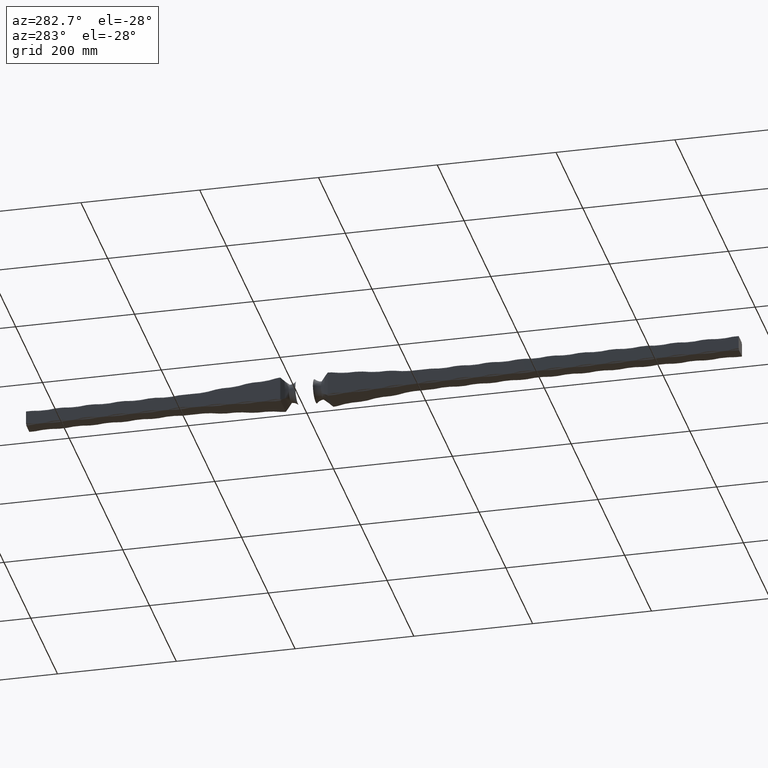
[diagram: clean part render]
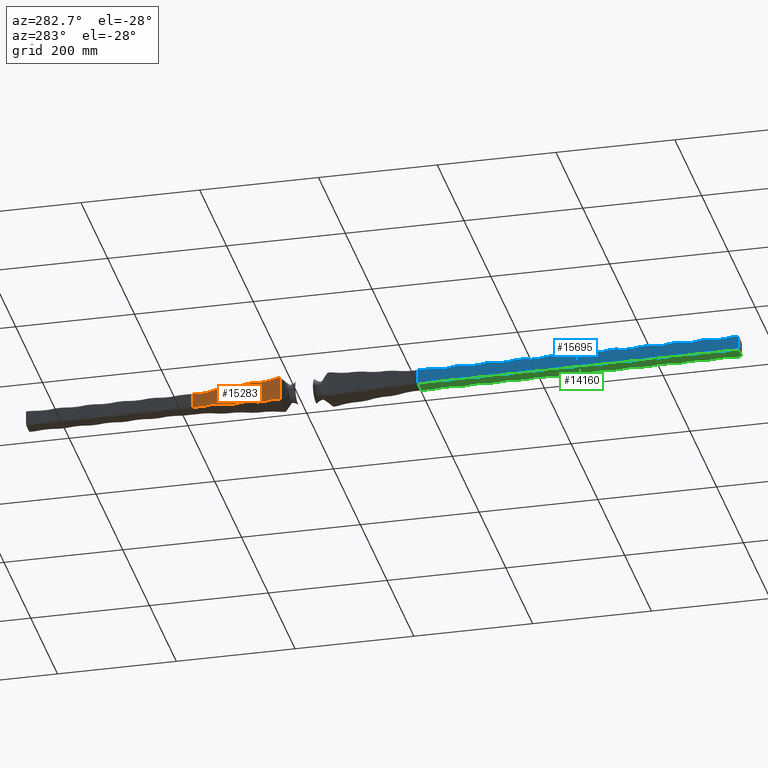
[diagram: same view with three faces highlighted in distinct colors, each labeled with its STEP entity id]
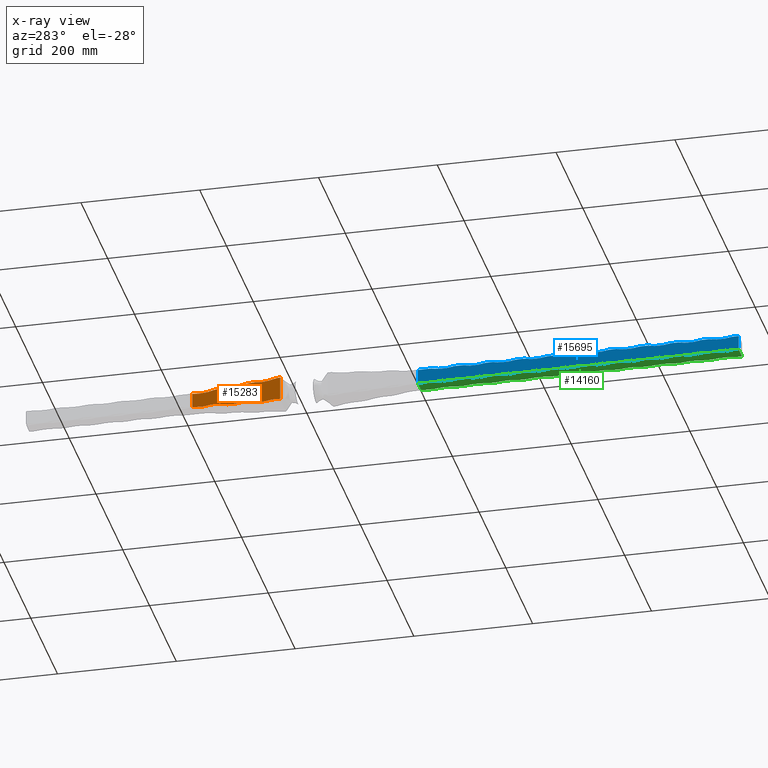
[diagram: x-ray of the same camera — body ghosted, the three highlighted faces saturated]
A machine part, auxiliary view with three faces highlighted in distinct colors.
The next image is the same camera in x-ray (body ghosted, the three faces saturated) — at least one of them is partly hidden behind the body in this view.
Their STEP definitions:

[orange] entity #15283 — the highlighted planar face has unit normal (-0.9984, 0.0566, 0).
#277 = CARTESIAN_POINT ( 'NONE',  ( -21.00000000000000711, 40.00000000000000000, 20.99999999999999289 ) ) ;
#294 = CIRCLE ( 'NONE', #4946, 81.24999999999987210 ) ;
#397 = ORIENTED_EDGE ( 'NONE', *, *, #1174, .T. ) ;
#486 = VERTEX_POINT ( 'NONE', #12861 ) ;
#538 = CARTESIAN_POINT ( 'NONE',  ( -12.50000000000000000, 190.0000000000000000, 12.50000000000000000 ) ) ;
#562 = ORIENTED_EDGE ( 'NONE', *, *, #11940, .T. ) ;
#812 = CARTESIAN_POINT ( 'NONE',  ( -16.31529829025017264, 122.6712066426441226, 95.19123039354830951 ) ) ;
#860 = CARTESIAN_POINT ( 'NONE',  ( -16.56696143558184176, 118.2300923132612382, -16.56696143558190926 ) ) ;
#1067 = VERTEX_POINT ( 'NONE', #11756 ) ;
#1174 = EDGE_CURVE ( 'NONE', #7459, #1945, #12394, .T. ) ;
#1239 = VERTEX_POINT ( 'NONE', #13956 ) ;
#1256 = DIRECTION ( 'NONE',  ( 0.9983983008393586545, -0.05657590371423038000, -0.000000000000000000 ) ) ;
#1577 = LINE ( 'NONE', #277, #2544 ) ;
#1737 = CARTESIAN_POINT ( 'NONE',  ( -20.38225972583189005, 50.90129895590548159, -99.25819182913001271 ) ) ;
#1945 = VERTEX_POINT ( 'NONE', #2256 ) ;
#2129 = DIRECTION ( 'NONE',  ( -0.05657590371423036613, -0.9983983008393584324, 0.000000000000000000 ) ) ;
#2149 = CARTESIAN_POINT ( 'NONE',  ( -21.00000000000000000, 40.00000000000000000, -21.00000000000001066 ) ) ;
#2256 = CARTESIAN_POINT ( 'NONE',  ( -18.37449985139595299, 86.33235556360118323, 18.37449985139590325 ) ) ;
#2468 = ORIENTED_EDGE ( 'NONE', *, *, #8350, .T. ) ;
#2499 = VECTOR ( 'NONE', #8227, 1000.000000000000000 ) ;
#2544 = VECTOR ( 'NONE', #8791, 999.9999999999998863 ) ;
#2571 = ORIENTED_EDGE ( 'NONE', *, *, #5411, .T. ) ;
#2853 = EDGE_CURVE ( 'NONE', #1239, #7459, #11809, .T. ) ;
#2909 = ORIENTED_EDGE ( 'NONE', *, *, #2853, .T. ) ;
#2952 = CARTESIAN_POINT ( 'NONE',  ( -19.50421136127986443, 66.39627009506082800, -19.50421136127996391 ) ) ;
#3080 = LINE ( 'NONE', #11721, #3654 ) ;
#3254 = CARTESIAN_POINT ( 'NONE',  ( -18.82638445534946925, 78.35792137618449260, -18.82638445534959715 ) ) ;
#3447 = EDGE_LOOP ( 'NONE', ( #7859, #12154, #3719, #2909, #397, #14274, #562, #2571, #2468, #7507, #10406, #7329, #10380, #15917 ) ) ;
#3620 = VERTEX_POINT ( 'NONE', #4412 ) ;
#3649 = CARTESIAN_POINT ( 'NONE',  ( -14.75942301976769322, 150.1278290629230980, 14.75942301976771098 ) ) ;
#3654 = VECTOR ( 'NONE', #4344, 999.9999999999998863 ) ;
#3698 = DIRECTION ( 'NONE',  ( -0.05657590371423036613, -0.9983983008393584324, 2.732856676000389821E-15 ) ) ;
#3719 = ORIENTED_EDGE ( 'NONE', *, *, #9148, .F. ) ;
#4344 = DIRECTION ( 'NONE',  ( 0.05648557549419242624, 0.9968042734269250138, 0.05648557549419249563 ) ) ;
#4398 = VECTOR ( 'NONE', #6594, 1000.000000000000000 ) ;
#4412 = CARTESIAN_POINT ( 'NONE',  ( -20.99999999999988276, 39.99999999999999289, -18.74519549917332029 ) ) ;
#4617 = VERTEX_POINT ( 'NONE', #860 ) ;
#4727 = VERTEX_POINT ( 'NONE', #10065 ) ;
#4779 = VERTEX_POINT ( 'NONE', #14899 ) ;
#4791 = LINE ( 'NONE', #538, #4398 ) ;
#4946 = AXIS2_PLACEMENT_3D ( 'NONE', #6340, #13630, #3698 ) ;
#5003 = VERTEX_POINT ( 'NONE', #3254 ) ;
#5276 = AXIS2_PLACEMENT_3D ( 'NONE', #9472, #8279, #2129 ) ;
#5411 = EDGE_CURVE ( 'NONE', #486, #11981, #5635, .T. ) ;
#5635 = LINE ( 'NONE', #6573, #14678 ) ;
#5703 = DIRECTION ( 'NONE',  ( 0.05648557549419242624, 0.9968042734269250138, 0.05648557549419249563 ) ) ;
#5902 = CARTESIAN_POINT ( 'NONE',  ( -21.00000000000000000, 40.00000000000000000, -21.00000000000001066 ) ) ;
#6017 = CARTESIAN_POINT ( 'NONE',  ( -12.50000000000000000, 190.0000000000000000, -12.50000000000000000 ) ) ;
#6340 = CARTESIAN_POINT ( 'NONE',  ( -17.44500980013394908, 102.7351211741056005, -96.32094190343195805 ) ) ;
#6573 = CARTESIAN_POINT ( 'NONE',  ( -21.00000000000000711, 40.00000000000000000, 20.99999999999999289 ) ) ;
#6594 = DIRECTION ( 'NONE',  ( 0.000000000000000000, 0.000000000000000000, -1.000000000000000000 ) ) ;
#6617 = EDGE_CURVE ( 'NONE', #1945, #4727, #1577, .T. ) ;
#6784 = VECTOR ( 'NONE', #12453, 999.9999999999998863 ) ;
#6810 = DIRECTION ( 'NONE',  ( 0.9983983008393586545, -0.05657590371423038000, -0.000000000000000000 ) ) ;
#6846 = VERTEX_POINT ( 'NONE', #2952 ) ;
#7112 = AXIS2_PLACEMENT_3D ( 'NONE', #11592, #1256, #13628 ) ;
#7184 = EDGE_CURVE ( 'NONE', #4617, #4779, #10671, .T. ) ;
#7211 = CARTESIAN_POINT ( 'NONE',  ( -13.37804836455215884, 174.5050288608442202, 92.25398046785014117 ) ) ;
#7329 = ORIENTED_EDGE ( 'NONE', *, *, #11925, .T. ) ;
#7459 = VERTEX_POINT ( 'NONE', #10923 ) ;
#7507 = ORIENTED_EDGE ( 'NONE', *, *, #12668, .T. ) ;
#7859 = ORIENTED_EDGE ( 'NONE', *, *, #13272, .F. ) ;
#8053 = VECTOR ( 'NONE', #5703, 999.9999999999998863 ) ;
#8227 = DIRECTION ( 'NONE',  ( 1.652117596168387263E-16, -0.000000000000000000, -1.000000000000000000 ) ) ;
#8279 = DIRECTION ( 'NONE',  ( -0.9983983008393585434, 0.05657590371423037306, 0.000000000000000000 ) ) ;
#8350 = EDGE_CURVE ( 'NONE', #11981, #1067, #14864, .T. ) ;
#8715 = VECTOR ( 'NONE', #13721, 999.9999999999998863 ) ;
#8776 = CIRCLE ( 'NONE', #11588, 81.24999999999987210 ) ;
#8791 = DIRECTION ( 'NONE',  ( 0.05648557549419247481, 0.9968042734269250138, -0.05648557549419237767 ) ) ;
#8866 = AXIS2_PLACEMENT_3D ( 'NONE', #13178, #15653, #10592 ) ;
#8957 = EDGE_CURVE ( 'NONE', #11680, #15634, #3080, .T. ) ;
#9148 = EDGE_CURVE ( 'NONE', #1239, #3620, #11581, .T. ) ;
#9472 = CARTESIAN_POINT ( 'NONE',  ( -23.19219395496684299, 1.314224324114788844, 0.000000000000000000 ) ) ;
#9495 = DIRECTION ( 'NONE',  ( 0.9983983008393586545, -0.05657590371423038000, -0.000000000000000000 ) ) ;
#9569 = DIRECTION ( 'NONE',  ( 0.9983983008393586545, -0.05657590371423038000, -0.000000000000000000 ) ) ;
#9884 = CARTESIAN_POINT ( 'NONE',  ( -13.62971150988382085, 170.0639145314615917, -13.62971150988386171 ) ) ;
#9959 = LINE ( 'NONE', #2149, #8053 ) ;
#10065 = CARTESIAN_POINT ( 'NONE',  ( -17.69667294546571057, 98.29400684472301464, 17.69667294546586689 ) ) ;
#10150 = CARTESIAN_POINT ( 'NONE',  ( -21.00000000000000000, 40.00000000000000000, -21.00000000000001066 ) ) ;
#10380 = ORIENTED_EDGE ( 'NONE', *, *, #7184, .F. ) ;
#10406 = ORIENTED_EDGE ( 'NONE', *, *, #8957, .F. ) ;
#10592 = DIRECTION ( 'NONE',  ( -0.05657590371423038694, -0.9983983008393584324, 6.148927521000876702E-15 ) ) ;
#10671 = LINE ( 'NONE', #10150, #8715 ) ;
#10752 = FACE_OUTER_BOUND ( 'NONE', #3447, .T. ) ;
#10923 = CARTESIAN_POINT ( 'NONE',  ( -20.63392287116372259, 46.46018462652293124, 20.63392287116402102 ) ) ;
#11483 = DIRECTION ( 'NONE',  ( 0.05648557549419247481, 0.9968042734269250138, -0.05648557549419237767 ) ) ;
#11581 = LINE ( 'NONE', #5902, #2499 ) ;
#11588 = AXIS2_PLACEMENT_3D ( 'NONE', #1737, #6810, #15437 ) ;
#11592 = CARTESIAN_POINT ( 'NONE',  ( -19.25254821594818821, 70.83738442444403915, 98.12848031924644943 ) ) ;
#11680 = VERTEX_POINT ( 'NONE', #9884 ) ;
#11721 = CARTESIAN_POINT ( 'NONE',  ( -21.00000000000000000, 40.00000000000000000, -21.00000000000001066 ) ) ;
#11741 = CIRCLE ( 'NONE', #12913, 81.24999999999994316 ) ;
#11756 = CARTESIAN_POINT ( 'NONE',  ( -12.50000000000000000, 190.0000000000000000, 12.50000000000000000 ) ) ;
#11809 = LINE ( 'NONE', #12353, #6784 ) ;
#11925 = EDGE_CURVE ( 'NONE', #11680, #4779, #14630, .T. ) ;
#11940 = EDGE_CURVE ( 'NONE', #4727, #486, #11741, .T. ) ;
#11981 = VERTEX_POINT ( 'NONE', #3649 ) ;
#12005 = PLANE ( 'NONE',  #5276 ) ;
#12048 = DIRECTION ( 'NONE',  ( -0.05657590371423035919, -0.9983983008393584324, 0.000000000000000000 ) ) ;
#12080 = EDGE_CURVE ( 'NONE', #4617, #5003, #294, .T. ) ;
#12154 = ORIENTED_EDGE ( 'NONE', *, *, #15034, .T. ) ;
#12353 = CARTESIAN_POINT ( 'NONE',  ( -21.00000000000000711, 40.00000000000000000, 20.99999999999999289 ) ) ;
#12394 = CIRCLE ( 'NONE', #7112, 81.24999999999994316 ) ;
#12453 = DIRECTION ( 'NONE',  ( 0.05648557549419247481, 0.9968042734269250138, -0.05648557549419237767 ) ) ;
#12668 = EDGE_CURVE ( 'NONE', #1067, #15634, #4791, .T. ) ;
#12861 = CARTESIAN_POINT ( 'NONE',  ( -15.43724992569796761, 138.1661777818006840, 15.43724992569793919 ) ) ;
#12913 = AXIS2_PLACEMENT_3D ( 'NONE', #812, #9569, #12048 ) ;
#13178 = CARTESIAN_POINT ( 'NONE',  ( -14.50775987443600989, 154.5689433923056981, -93.38369197773393182 ) ) ;
#13272 = EDGE_CURVE ( 'NONE', #6846, #5003, #9959, .T. ) ;
#13628 = DIRECTION ( 'NONE',  ( -0.05657590371423035919, -0.9983983008393584324, 0.000000000000000000 ) ) ;
#13630 = DIRECTION ( 'NONE',  ( 0.9983983008393586545, -0.05657590371423038000, -0.000000000000000000 ) ) ;
#13721 = DIRECTION ( 'NONE',  ( 0.05648557549419242624, 0.9968042734269250138, 0.05648557549419249563 ) ) ;
#13956 = CARTESIAN_POINT ( 'NONE',  ( -21.00000000000000711, 40.00000000000000000, 20.99999999999999289 ) ) ;
#14013 = AXIS2_PLACEMENT_3D ( 'NONE', #7211, #9495, #15683 ) ;
#14274 = ORIENTED_EDGE ( 'NONE', *, *, #6617, .T. ) ;
#14630 = CIRCLE ( 'NONE', #8866, 81.24999999999987210 ) ;
#14678 = VECTOR ( 'NONE', #11483, 999.9999999999998863 ) ;
#14864 = CIRCLE ( 'NONE', #14013, 81.24999999999994316 ) ;
#14899 = CARTESIAN_POINT ( 'NONE',  ( -15.88913452965152651, 130.1917435943846044, -15.88913452965155848 ) ) ;
#15034 = EDGE_CURVE ( 'NONE', #6846, #3620, #8776, .T. ) ;
#15283 = ADVANCED_FACE ( 'NONE', ( #10752 ), #12005, .T. ) ;
#15437 = DIRECTION ( 'NONE',  ( -0.05657590371423036613, -0.9983983008393584324, 2.732856676000389821E-15 ) ) ;
#15634 = VERTEX_POINT ( 'NONE', #6017 ) ;
#15653 = DIRECTION ( 'NONE',  ( 0.9983983008393586545, -0.05657590371423038000, -0.000000000000000000 ) ) ;
#15683 = DIRECTION ( 'NONE',  ( -0.05657590371423035919, -0.9983983008393584324, 0.000000000000000000 ) ) ;
#15917 = ORIENTED_EDGE ( 'NONE', *, *, #12080, .T. ) ;

[blue] entity #15695 — the highlighted planar face has unit normal (1, 0, 0).
#9 = LINE ( 'NONE', #11752, #6208 ) ;
#26 = CARTESIAN_POINT ( 'NONE',  ( -12.49999999999999645, -720.0000000000000000, 12.50000000000000533 ) ) ;
#70 = CIRCLE ( 'NONE', #12720, 81.25000000000005684 ) ;
#113 = ORIENTED_EDGE ( 'NONE', *, *, #13158, .F. ) ;
#146 = LINE ( 'NONE', #3656, #9275 ) ;
#225 = EDGE_CURVE ( 'NONE', #3206, #9755, #11658, .T. ) ;
#354 = VERTEX_POINT ( 'NONE', #2924 ) ;
#358 = DIRECTION ( 'NONE',  ( 0.000000000000000000, 0.000000000000000000, -1.000000000000000000 ) ) ;
#383 = CIRCLE ( 'NONE', #5669, 81.25000000000007105 ) ;
#394 = DIRECTION ( 'NONE',  ( -0.000000000000000000, 1.000000000000000000, -0.000000000000000000 ) ) ;
#421 = CARTESIAN_POINT ( 'NONE',  ( -12.50000000000000000, -1965.355339059327207, 12.50000000000000000 ) ) ;
#448 = EDGE_CURVE ( 'NONE', #3206, #6630, #10895, .T. ) ;
#449 = ORIENTED_EDGE ( 'NONE', *, *, #225, .T. ) ;
#491 = DIRECTION ( 'NONE',  ( -1.000000000000000000, -0.000000000000000000, -0.000000000000000000 ) ) ;
#537 = VERTEX_POINT ( 'NONE', #1294 ) ;
#554 = VECTOR ( 'NONE', #12386, 1000.000000000000000 ) ;
#561 = VECTOR ( 'NONE', #5004, 1000.000000000000000 ) ;
#587 = DIRECTION ( 'NONE',  ( -1.000000000000000000, -0.000000000000000000, -0.000000000000000000 ) ) ;
#618 = CARTESIAN_POINT ( 'NONE',  ( -12.50000000000000000, -1965.355339059327207, -12.50000000000000000 ) ) ;
#693 = LINE ( 'NONE', #11287, #4598 ) ;
#775 = CARTESIAN_POINT ( 'NONE',  ( -12.50000000000000000, -1965.355339059327207, -12.50000000000000000 ) ) ;
#814 = CARTESIAN_POINT ( 'NONE',  ( -12.49999999999999289, -387.9999999999995453, -12.49999999999999645 ) ) ;
#830 = CARTESIAN_POINT ( 'NONE',  ( -12.50000000000000000, -730.0000000000000000, -10.02461911446646070 ) ) ;
#848 = ORIENTED_EDGE ( 'NONE', *, *, #9998, .T. ) ;
#859 = CARTESIAN_POINT ( 'NONE',  ( -12.49999999999999645, -679.9999999999998863, 12.50000000000000533 ) ) ;
#896 = DIRECTION ( 'NONE',  ( 0.000000000000000000, 0.000000000000000000, -1.000000000000000000 ) ) ;
#915 = CARTESIAN_POINT ( 'NONE',  ( -12.49999999999999289, -451.9999999999999432, -12.50000000000006750 ) ) ;
#922 = ORIENTED_EDGE ( 'NONE', *, *, #2347, .T. ) ;
#942 = CARTESIAN_POINT ( 'NONE',  ( -12.49999999999999645, -408.0000000000003979, 12.49999999999991651 ) ) ;
#959 = VERTEX_POINT ( 'NONE', #6622 ) ;
#1061 = CARTESIAN_POINT ( 'NONE',  ( -12.49999999999999289, -555.9999999999998863, -12.50000000000003553 ) ) ;
#1137 = LINE ( 'NONE', #8103, #8115 ) ;
#1149 = CARTESIAN_POINT ( 'NONE',  ( -12.49999999999999289, -543.9999999999996589, -12.49999999999999645 ) ) ;
#1219 = VERTEX_POINT ( 'NONE', #8890 ) ;
#1226 = DIRECTION ( 'NONE',  ( 0.000000000000000000, 0.000000000000000000, -1.000000000000000000 ) ) ;
#1236 = DIRECTION ( 'NONE',  ( -0.000000000000000000, 1.000000000000000000, -0.000000000000000000 ) ) ;
#1277 = EDGE_CURVE ( 'NONE', #3437, #13250, #11836, .T. ) ;
#1282 = DIRECTION ( 'NONE',  ( 0.000000000000000000, 0.000000000000000000, -1.000000000000000000 ) ) ;
#1292 = ORIENTED_EDGE ( 'NONE', *, *, #12832, .F. ) ;
#1294 = CARTESIAN_POINT ( 'NONE',  ( -12.49999999999999467, -190.0000000000000853, 12.50000000000001243 ) ) ;
#1321 = LINE ( 'NONE', #12014, #13519 ) ;
#1401 = AXIS2_PLACEMENT_3D ( 'NONE', #2622, #12494, #11146 ) ;
#1434 = ORIENTED_EDGE ( 'NONE', *, *, #10932, .T. ) ;
#1452 = VERTEX_POINT ( 'NONE', #814 ) ;
#1454 = VERTEX_POINT ( 'NONE', #8063 ) ;
#1649 = AXIS2_PLACEMENT_3D ( 'NONE', #10328, #10391, #4248 ) ;
#1806 = ORIENTED_EDGE ( 'NONE', *, *, #6106, .T. ) ;
#1881 = DIRECTION ( 'NONE',  ( -0.000000000000000000, 1.000000000000000000, -0.000000000000000000 ) ) ;
#1923 = VERTEX_POINT ( 'NONE', #15779 ) ;
#1936 = VECTOR ( 'NONE', #9509, 1000.000000000000000 ) ;
#2030 = DIRECTION ( 'NONE',  ( -0.000000000000000000, 1.000000000000000000, -0.000000000000000000 ) ) ;
#2040 = ORIENTED_EDGE ( 'NONE', *, *, #4087, .T. ) ;
#2104 = CIRCLE ( 'NONE', #3893, 81.24999999999998579 ) ;
#2200 = CIRCLE ( 'NONE', #2826, 81.25000000000007105 ) ;
#2262 = DIRECTION ( 'NONE',  ( 0.000000000000000000, 0.000000000000000000, -1.000000000000000000 ) ) ;
#2301 = CARTESIAN_POINT ( 'NONE',  ( -12.49999999999999645, -252.0000000000006253, 12.49999999999987033 ) ) ;
#2305 = CARTESIAN_POINT ( 'NONE',  ( -12.49999999999997691, -732.0000000000000000, -91.25000000000008527 ) ) ;
#2315 = VERTEX_POINT ( 'NONE', #10603 ) ;
#2347 = EDGE_CURVE ( 'NONE', #6139, #9299, #383, .T. ) ;
#2355 = AXIS2_PLACEMENT_3D ( 'NONE', #11854, #13421, #2262 ) ;
#2380 = CARTESIAN_POINT ( 'NONE',  ( -12.49999999999987743, -263.9999999999999432, 12.49999999999988631 ) ) ;
#2512 = EDGE_CURVE ( 'NONE', #1219, #354, #10859, .T. ) ;
#2622 = CARTESIAN_POINT ( 'NONE',  ( -12.49999999999999289, -472.0000000000000000, -91.25000000000012790 ) ) ;
#2657 = CARTESIAN_POINT ( 'NONE',  ( -12.49999999999999289, -231.9999999999994316, -12.49999999999999645 ) ) ;
#2665 = DIRECTION ( 'NONE',  ( 0.000000000000000000, 0.000000000000000000, 1.000000000000000000 ) ) ;
#2670 = LINE ( 'NONE', #12996, #11757 ) ;
#2684 = LINE ( 'NONE', #12216, #7148 ) ;
#2714 = VECTOR ( 'NONE', #394, 1000.000000000000000 ) ;
#2725 = EDGE_CURVE ( 'NONE', #10695, #14837, #4698, .T. ) ;
#2826 = AXIS2_PLACEMENT_3D ( 'NONE', #2305, #12127, #8596 ) ;
#2913 = EDGE_CURVE ( 'NONE', #5672, #1454, #7181, .T. ) ;
#2924 = CARTESIAN_POINT ( 'NONE',  ( -12.49999999999999645, -616.0000000000001137, 12.49999999999997691 ) ) ;
#3115 = DIRECTION ( 'NONE',  ( -0.000000000000000000, 1.000000000000000000, -0.000000000000000000 ) ) ;
#3206 = VERTEX_POINT ( 'NONE', #10521 ) ;
#3235 = CARTESIAN_POINT ( 'NONE',  ( -12.49999999999999289, -700.0000000000000000, -12.49999999999999645 ) ) ;
#3293 = AXIS2_PLACEMENT_3D ( 'NONE', #11577, #491, #11630 ) ;
#3301 = CARTESIAN_POINT ( 'NONE',  ( -12.49999999999989164, -315.9999999999999432, 12.49999999999990052 ) ) ;
#3323 = DIRECTION ( 'NONE',  ( -1.000000000000000000, -0.000000000000000000, -0.000000000000000000 ) ) ;
#3341 = CARTESIAN_POINT ( 'NONE',  ( -12.49999999999999289, -283.9999999999994884, -12.49999999999999645 ) ) ;
#3410 = CARTESIAN_POINT ( 'NONE',  ( -12.49999999999999289, -576.0000000000000000, -91.25000000000009948 ) ) ;
#3422 = CIRCLE ( 'NONE', #5998, 81.25000000000007105 ) ;
#3424 = CARTESIAN_POINT ( 'NONE',  ( -12.49999999999999289, -335.9999999999995453, -12.49999999999999645 ) ) ;
#3432 = VERTEX_POINT ( 'NONE', #14903 ) ;
#3437 = VERTEX_POINT ( 'NONE', #3588 ) ;
#3439 = EDGE_CURVE ( 'NONE', #10508, #15776, #5828, .T. ) ;
#3450 = CIRCLE ( 'NONE', #1401, 81.25000000000005684 ) ;
#3484 = CARTESIAN_POINT ( 'NONE',  ( -12.50000000000000000, -1965.355339059327207, 12.50000000000000000 ) ) ;
#3499 = AXIS2_PLACEMENT_3D ( 'NONE', #4881, #7196, #14537 ) ;
#3527 = CARTESIAN_POINT ( 'NONE',  ( -12.49999999999999289, -315.9999999999999432, -91.25000000000017053 ) ) ;
#3588 = CARTESIAN_POINT ( 'NONE',  ( -12.49999999999999289, -347.9999999999999432, -12.50000000000009592 ) ) ;
#3651 = VERTEX_POINT ( 'NONE', #6936 ) ;
#3656 = CARTESIAN_POINT ( 'NONE',  ( -12.50000000000000000, -1965.355339059327207, -12.50000000000000000 ) ) ;
#3657 = LINE ( 'NONE', #8833, #561 ) ;
#3715 = EDGE_CURVE ( 'NONE', #10695, #15578, #11815, .T. ) ;
#3718 = ORIENTED_EDGE ( 'NONE', *, *, #9682, .T. ) ;
#3720 = ORIENTED_EDGE ( 'NONE', *, *, #13401, .T. ) ;
#3753 = VECTOR ( 'NONE', #9028, 1000.000000000000000 ) ;
#3835 = EDGE_CURVE ( 'NONE', #1923, #1454, #9310, .T. ) ;
#3893 = AXIS2_PLACEMENT_3D ( 'NONE', #14499, #3323, #896 ) ;
#3912 = ORIENTED_EDGE ( 'NONE', *, *, #15341, .T. ) ;
#3943 = CARTESIAN_POINT ( 'NONE',  ( -12.49999999999990763, -367.9999999999999432, 12.49999999999991651 ) ) ;
#4022 = VERTEX_POINT ( 'NONE', #942 ) ;
#4057 = EDGE_CURVE ( 'NONE', #3651, #13250, #8154, .T. ) ;
#4087 = EDGE_CURVE ( 'NONE', #959, #4751, #6364, .T. ) ;
#4114 = AXIS2_PLACEMENT_3D ( 'NONE', #9154, #6657, #5495 ) ;
#4180 = CIRCLE ( 'NONE', #10871, 81.25000000000007105 ) ;
#4248 = DIRECTION ( 'NONE',  ( 0.000000000000000000, 0.000000000000000000, -1.000000000000000000 ) ) ;
#4334 = VERTEX_POINT ( 'NONE', #830 ) ;
#4373 = DIRECTION ( 'NONE',  ( 0.000000000000000000, 0.000000000000000000, -1.000000000000000000 ) ) ;
#4377 = CARTESIAN_POINT ( 'NONE',  ( -12.49999999999996447, -596.0000000000000000, 91.24999999999994316 ) ) ;
#4403 = CARTESIAN_POINT ( 'NONE',  ( -12.49999999999999289, -191.9999999999999432, -12.50000000000014033 ) ) ;
#4426 = EDGE_CURVE ( 'NONE', #2315, #4022, #10846, .T. ) ;
#4456 = AXIS2_PLACEMENT_3D ( 'NONE', #3410, #12159, #12059 ) ;
#4565 = CIRCLE ( 'NONE', #1649, 81.25000000000005684 ) ;
#4598 = VECTOR ( 'NONE', #1236, 1000.000000000000000 ) ;
#4608 = VERTEX_POINT ( 'NONE', #3341 ) ;
#4639 = ORIENTED_EDGE ( 'NONE', *, *, #3835, .F. ) ;
#4698 = LINE ( 'NONE', #10178, #2714 ) ;
#4715 = EDGE_CURVE ( 'NONE', #6507, #15578, #3657, .T. ) ;
#4751 = VERTEX_POINT ( 'NONE', #1149 ) ;
#4762 = ORIENTED_EDGE ( 'NONE', *, *, #4426, .T. ) ;
#4786 = CARTESIAN_POINT ( 'NONE',  ( -12.49999999999987388, -284.0000000000000000, 91.24999999999985789 ) ) ;
#4805 = ORIENTED_EDGE ( 'NONE', *, *, #13371, .F. ) ;
#4881 = CARTESIAN_POINT ( 'NONE',  ( -12.49999999999997868, -647.9999999999998863, 91.24999999999997158 ) ) ;
#5004 = DIRECTION ( 'NONE',  ( -0.000000000000000000, 1.000000000000000000, -0.000000000000000000 ) ) ;
#5128 = CARTESIAN_POINT ( 'NONE',  ( -12.49999999999999645, -512.0000000000003411, 12.49999999999994493 ) ) ;
#5138 = EDGE_CURVE ( 'NONE', #959, #5892, #1321, .T. ) ;
#5145 = DIRECTION ( 'NONE',  ( 1.000000000000000000, 0.000000000000000000, 0.000000000000000000 ) ) ;
#5146 = AXIS2_PLACEMENT_3D ( 'NONE', #3527, #12175, #15782 ) ;
#5149 = CARTESIAN_POINT ( 'NONE',  ( -12.49999999999999289, -627.9999999999998863, -91.25000000000008527 ) ) ;
#5157 = LINE ( 'NONE', #775, #14238 ) ;
#5168 = DIRECTION ( 'NONE',  ( -0.000000000000000000, 1.000000000000000000, -0.000000000000000000 ) ) ;
#5210 = VERTEX_POINT ( 'NONE', #9779 ) ;
#5218 = VECTOR ( 'NONE', #13569, 1000.000000000000000 ) ;
#5406 = ORIENTED_EDGE ( 'NONE', *, *, #14958, .T. ) ;
#5466 = VECTOR ( 'NONE', #3115, 1000.000000000000000 ) ;
#5480 = AXIS2_PLACEMENT_3D ( 'NONE', #15404, #10517, #4373 ) ;
#5495 = DIRECTION ( 'NONE',  ( 0.000000000000000000, 0.000000000000000000, -1.000000000000000000 ) ) ;
#5617 = VERTEX_POINT ( 'NONE', #3235 ) ;
#5657 = DIRECTION ( 'NONE',  ( -0.000000000000000000, 1.000000000000000000, -0.000000000000000000 ) ) ;
#5669 = AXIS2_PLACEMENT_3D ( 'NONE', #7036, #15666, #13298 ) ;
#5672 = VERTEX_POINT ( 'NONE', #859 ) ;
#5684 = CARTESIAN_POINT ( 'NONE',  ( -12.49999999999999289, -700.0000000000000000, 91.24999999999998579 ) ) ;
#5796 = LINE ( 'NONE', #11983, #1936 ) ;
#5828 = LINE ( 'NONE', #9754, #5218 ) ;
#5892 = VERTEX_POINT ( 'NONE', #11468 ) ;
#5984 = AXIS2_PLACEMENT_3D ( 'NONE', #4786, #7250, #15873 ) ;
#5985 = ORIENTED_EDGE ( 'NONE', *, *, #13486, .T. ) ;
#5998 = AXIS2_PLACEMENT_3D ( 'NONE', #14794, #14605, #7212 ) ;
#6040 = VECTOR ( 'NONE', #9748, 1000.000000000000000 ) ;
#6106 = EDGE_CURVE ( 'NONE', #15285, #4334, #2200, .T. ) ;
#6115 = EDGE_CURVE ( 'NONE', #11472, #6630, #11835, .T. ) ;
#6129 = ORIENTED_EDGE ( 'NONE', *, *, #9267, .F. ) ;
#6139 = VERTEX_POINT ( 'NONE', #7357 ) ;
#6176 = ORIENTED_EDGE ( 'NONE', *, *, #13168, .F. ) ;
#6208 = VECTOR ( 'NONE', #5657, 1000.000000000000000 ) ;
#6280 = CARTESIAN_POINT ( 'NONE',  ( -12.50000000000000000, -730.0000000000000000, 12.50000000000000000 ) ) ;
#6364 = CIRCLE ( 'NONE', #11548, 81.25000000000004263 ) ;
#6370 = DIRECTION ( 'NONE',  ( 1.000000000000000000, 0.000000000000000000, 0.000000000000000000 ) ) ;
#6415 = VECTOR ( 'NONE', #14146, 1000.000000000000000 ) ;
#6507 = VERTEX_POINT ( 'NONE', #3301 ) ;
#6508 = DIRECTION ( 'NONE',  ( -0.000000000000000000, 1.000000000000000000, -0.000000000000000000 ) ) ;
#6622 = CARTESIAN_POINT ( 'NONE',  ( -12.49999999999999289, -503.9999999999998863, -12.50000000000005151 ) ) ;
#6630 = VERTEX_POINT ( 'NONE', #5128 ) ;
#6657 = DIRECTION ( 'NONE',  ( -1.000000000000000000, -0.000000000000000000, -0.000000000000000000 ) ) ;
#6768 = CARTESIAN_POINT ( 'NONE',  ( -12.49999999999995204, -523.9999999999998863, 12.49999999999996092 ) ) ;
#6841 = DIRECTION ( 'NONE',  ( -1.000000000000000000, -0.000000000000000000, -0.000000000000000000 ) ) ;
#6885 = EDGE_CURVE ( 'NONE', #15285, #5617, #10867, .T. ) ;
#6892 = CARTESIAN_POINT ( 'NONE',  ( -12.49999999999999645, -356.0000000000004547, 12.49999999999990052 ) ) ;
#6906 = ORIENTED_EDGE ( 'NONE', *, *, #1277, .F. ) ;
#6936 = CARTESIAN_POINT ( 'NONE',  ( -12.49999999999999289, -295.9999999999999432, -12.50000000000011191 ) ) ;
#6997 = EDGE_CURVE ( 'NONE', #1923, #354, #9, .T. ) ;
#7036 = CARTESIAN_POINT ( 'NONE',  ( -12.49999999999999289, -419.9999999999999432, -91.25000000000014211 ) ) ;
#7065 = DIRECTION ( 'NONE',  ( -0.000000000000000000, 1.000000000000000000, -0.000000000000000000 ) ) ;
#7081 = CIRCLE ( 'NONE', #3293, 81.24999999999998579 ) ;
#7148 = VECTOR ( 'NONE', #1226, 1000.000000000000000 ) ;
#7154 = ORIENTED_EDGE ( 'NONE', *, *, #14540, .T. ) ;
#7175 = CARTESIAN_POINT ( 'NONE',  ( -12.49999999999999645, -460.0000000000003411, 12.49999999999993072 ) ) ;
#7181 = LINE ( 'NONE', #12556, #13905 ) ;
#7196 = DIRECTION ( 'NONE',  ( -1.000000000000000000, -0.000000000000000000, -0.000000000000000000 ) ) ;
#7212 = DIRECTION ( 'NONE',  ( 0.000000000000000000, 0.000000000000000000, -1.000000000000000000 ) ) ;
#7250 = DIRECTION ( 'NONE',  ( -1.000000000000000000, -0.000000000000000000, -0.000000000000000000 ) ) ;
#7357 = CARTESIAN_POINT ( 'NONE',  ( -12.49999999999999289, -399.9999999999998863, -12.50000000000007994 ) ) ;
#7395 = DIRECTION ( 'NONE',  ( -0.000000000000000000, 1.000000000000000000, -0.000000000000000000 ) ) ;
#7420 = ORIENTED_EDGE ( 'NONE', *, *, #6997, .T. ) ;
#7490 = EDGE_LOOP ( 'NONE', ( #13182, #13602, #8499, #848, #6129, #16003, #6906, #7154, #16009, #922, #10637, #1434, #14572, #2040, #4805, #15054, #1292, #3720, #11380, #5406, #13845, #1806, #3912, #5985, #14656, #13859, #4639, #7420, #8295, #8489, #8967, #12744, #13938, #449, #8859, #4762, #12813, #10261, #113, #15195, #13443, #7892, #6176, #3718, #13896 ) ) ;
#7546 = CARTESIAN_POINT ( 'NONE',  ( -12.49999999999999289, -607.9999999999998863, -12.50000000000002132 ) ) ;
#7892 = ORIENTED_EDGE ( 'NONE', *, *, #2725, .T. ) ;
#7930 = VERTEX_POINT ( 'NONE', #915 ) ;
#7942 = CARTESIAN_POINT ( 'NONE',  ( -12.50000000000000000, -1965.355339059327207, 12.50000000000000000 ) ) ;
#7993 = VERTEX_POINT ( 'NONE', #8375 ) ;
#8063 = CARTESIAN_POINT ( 'NONE',  ( -12.49999999999999645, -668.0000000000000000, 12.49999999999999112 ) ) ;
#8103 = CARTESIAN_POINT ( 'NONE',  ( -12.50000000000000000, -1965.355339059327207, -12.50000000000000000 ) ) ;
#8114 = FACE_OUTER_BOUND ( 'NONE', #7490, .T. ) ;
#8115 = VECTOR ( 'NONE', #13117, 1000.000000000000000 ) ;
#8154 = CIRCLE ( 'NONE', #5146, 81.25000000000004263 ) ;
#8295 = ORIENTED_EDGE ( 'NONE', *, *, #2512, .F. ) ;
#8299 = VERTEX_POINT ( 'NONE', #6892 ) ;
#8375 = CARTESIAN_POINT ( 'NONE',  ( -12.49999999999999289, -647.9999999999997726, -12.49999999999999645 ) ) ;
#8489 = ORIENTED_EDGE ( 'NONE', *, *, #13492, .T. ) ;
#8499 = ORIENTED_EDGE ( 'NONE', *, *, #9434, .F. ) ;
#8529 = CARTESIAN_POINT ( 'NONE',  ( -12.49999999999999289, -439.9999999999996021, -12.49999999999999645 ) ) ;
#8596 = DIRECTION ( 'NONE',  ( 0.000000000000000000, 0.000000000000000000, -1.000000000000000000 ) ) ;
#8657 = AXIS2_PLACEMENT_3D ( 'NONE', #10495, #9317, #12919 ) ;
#8696 = DIRECTION ( 'NONE',  ( 1.000000000000000000, 0.000000000000000000, 0.000000000000000000 ) ) ;
#8833 = CARTESIAN_POINT ( 'NONE',  ( -12.50000000000000000, -1965.355339059327207, 12.50000000000000000 ) ) ;
#8859 = ORIENTED_EDGE ( 'NONE', *, *, #13802, .F. ) ;
#8869 = DIRECTION ( 'NONE',  ( -0.000000000000000000, 1.000000000000000000, -0.000000000000000000 ) ) ;
#8890 = CARTESIAN_POINT ( 'NONE',  ( -12.49999999999996803, -576.0000000000000000, 12.49999999999997691 ) ) ;
#8927 = EDGE_CURVE ( 'NONE', #5672, #11609, #13515, .T. ) ;
#8967 = ORIENTED_EDGE ( 'NONE', *, *, #12268, .F. ) ;
#9028 = DIRECTION ( 'NONE',  ( -0.000000000000000000, 1.000000000000000000, -0.000000000000000000 ) ) ;
#9154 = CARTESIAN_POINT ( 'NONE',  ( -12.49999999999985789, -231.9999999999999716, 91.24999999999984368 ) ) ;
#9245 = CARTESIAN_POINT ( 'NONE',  ( -12.50000000000000000, -1965.355339059327207, 12.50000000000000000 ) ) ;
#9267 = EDGE_CURVE ( 'NONE', #3651, #4608, #9848, .T. ) ;
#9275 = VECTOR ( 'NONE', #9969, 1000.000000000000000 ) ;
#9299 = VERTEX_POINT ( 'NONE', #8529 ) ;
#9310 = CIRCLE ( 'NONE', #3499, 81.24999999999998579 ) ;
#9317 = DIRECTION ( 'NONE',  ( -1.000000000000000000, -0.000000000000000000, -0.000000000000000000 ) ) ;
#9404 = LINE ( 'NONE', #7942, #9946 ) ;
#9434 = EDGE_CURVE ( 'NONE', #3432, #13433, #146, .T. ) ;
#9449 = VERTEX_POINT ( 'NONE', #7546 ) ;
#9509 = DIRECTION ( 'NONE',  ( -0.000000000000000000, 1.000000000000000000, -0.000000000000000000 ) ) ;
#9600 = DIRECTION ( 'NONE',  ( 1.000000000000000000, 0.000000000000000000, 0.000000000000000000 ) ) ;
#9602 = EDGE_CURVE ( 'NONE', #6139, #1452, #1137, .T. ) ;
#9682 = EDGE_CURVE ( 'NONE', #5210, #537, #5796, .T. ) ;
#9688 = DIRECTION ( 'NONE',  ( -1.000000000000000000, -0.000000000000000000, -0.000000000000000000 ) ) ;
#9748 = DIRECTION ( 'NONE',  ( -0.000000000000000000, 1.000000000000000000, -0.000000000000000000 ) ) ;
#9754 = CARTESIAN_POINT ( 'NONE',  ( -12.50000000000000000, -1965.355339059327207, -12.50000000000000000 ) ) ;
#9755 = VERTEX_POINT ( 'NONE', #7175 ) ;
#9779 = CARTESIAN_POINT ( 'NONE',  ( -12.49999999999986144, -211.9999999999999716, 12.49999999999987033 ) ) ;
#9848 = LINE ( 'NONE', #13446, #12348 ) ;
#9946 = VECTOR ( 'NONE', #6508, 1000.000000000000000 ) ;
#9969 = DIRECTION ( 'NONE',  ( -0.000000000000000000, 1.000000000000000000, -0.000000000000000000 ) ) ;
#9998 = EDGE_CURVE ( 'NONE', #3432, #4608, #11953, .T. ) ;
#10178 = CARTESIAN_POINT ( 'NONE',  ( -12.50000000000000000, -1965.355339059327207, 12.50000000000000000 ) ) ;
#10261 = ORIENTED_EDGE ( 'NONE', *, *, #14006, .T. ) ;
#10314 = VERTEX_POINT ( 'NONE', #3943 ) ;
#10328 = CARTESIAN_POINT ( 'NONE',  ( -12.49999999999999289, -367.9999999999999432, -91.25000000000015632 ) ) ;
#10391 = DIRECTION ( 'NONE',  ( 1.000000000000000000, 0.000000000000000000, 0.000000000000000000 ) ) ;
#10495 = CARTESIAN_POINT ( 'NONE',  ( -12.49999999999993250, -492.0000000000000000, 91.24999999999991473 ) ) ;
#10508 = VERTEX_POINT ( 'NONE', #4403 ) ;
#10517 = DIRECTION ( 'NONE',  ( -1.000000000000000000, -0.000000000000000000, -0.000000000000000000 ) ) ;
#10521 = CARTESIAN_POINT ( 'NONE',  ( -12.49999999999993605, -472.0000000000000000, 12.49999999999994493 ) ) ;
#10603 = CARTESIAN_POINT ( 'NONE',  ( -12.49999999999992184, -419.9999999999999432, 12.49999999999993072 ) ) ;
#10618 = EDGE_CURVE ( 'NONE', #10912, #13415, #12336, .T. ) ;
#10637 = ORIENTED_EDGE ( 'NONE', *, *, #11110, .F. ) ;
#10656 = CARTESIAN_POINT ( 'NONE',  ( -12.49999999999997691, -712.0000000000000000, -12.50000000000002309 ) ) ;
#10695 = VERTEX_POINT ( 'NONE', #2380 ) ;
#10776 = CARTESIAN_POINT ( 'NONE',  ( -12.49999999999999645, -304.0000000000005116, 12.49999999999988631 ) ) ;
#10836 = DIRECTION ( 'NONE',  ( 0.000000000000000000, 0.000000000000000000, -1.000000000000000000 ) ) ;
#10846 = LINE ( 'NONE', #11323, #15844 ) ;
#10859 = CIRCLE ( 'NONE', #13709, 81.24999999999998579 ) ;
#10867 = LINE ( 'NONE', #14711, #13555 ) ;
#10871 = AXIS2_PLACEMENT_3D ( 'NONE', #5149, #6370, #13658 ) ;
#10895 = CIRCLE ( 'NONE', #8657, 81.24999999999998579 ) ;
#10912 = VERTEX_POINT ( 'NONE', #1061 ) ;
#10932 = EDGE_CURVE ( 'NONE', #7930, #5892, #3450, .T. ) ;
#10934 = VECTOR ( 'NONE', #2665, 1000.000000000000000 ) ;
#10941 = VERTEX_POINT ( 'NONE', #11255 ) ;
#11104 = CIRCLE ( 'NONE', #12816, 81.24999999999998579 ) ;
#11110 = EDGE_CURVE ( 'NONE', #7930, #9299, #2670, .T. ) ;
#11146 = DIRECTION ( 'NONE',  ( 0.000000000000000000, 0.000000000000000000, -1.000000000000000000 ) ) ;
#11176 = EDGE_CURVE ( 'NONE', #10314, #4022, #2104, .T. ) ;
#11255 = CARTESIAN_POINT ( 'NONE',  ( -12.50000000000000000, -730.0000000000000000, 12.50000000000000000 ) ) ;
#11287 = CARTESIAN_POINT ( 'NONE',  ( -12.50000000000000000, -1965.355339059327207, -12.50000000000000000 ) ) ;
#11319 = CIRCLE ( 'NONE', #5480, 81.24999999999998579 ) ;
#11323 = CARTESIAN_POINT ( 'NONE',  ( -12.50000000000000000, -1965.355339059327207, 12.50000000000000000 ) ) ;
#11348 = CARTESIAN_POINT ( 'NONE',  ( -12.50000000000000000, -1965.355339059327207, -12.50000000000000000 ) ) ;
#11380 = ORIENTED_EDGE ( 'NONE', *, *, #15412, .F. ) ;
#11381 = CARTESIAN_POINT ( 'NONE',  ( -12.50000000000000000, -190.0000000000000000, -12.50000000000000000 ) ) ;
#11388 = CARTESIAN_POINT ( 'NONE',  ( -12.49999999999999289, -679.9999999999998863, -91.25000000000007105 ) ) ;
#11445 = CARTESIAN_POINT ( 'NONE',  ( -12.50000000000000000, -1965.355339059327207, 12.50000000000000000 ) ) ;
#11468 = CARTESIAN_POINT ( 'NONE',  ( -12.49999999999999289, -491.9999999999997158, -12.49999999999999645 ) ) ;
#11472 = VERTEX_POINT ( 'NONE', #6768 ) ;
#11548 = AXIS2_PLACEMENT_3D ( 'NONE', #13416, #9600, #10836 ) ;
#11577 = CARTESIAN_POINT ( 'NONE',  ( -12.49999999999988809, -335.9999999999999432, 91.24999999999987210 ) ) ;
#11609 = VERTEX_POINT ( 'NONE', #26 ) ;
#11630 = DIRECTION ( 'NONE',  ( 0.000000000000000000, 0.000000000000000000, -1.000000000000000000 ) ) ;
#11658 = LINE ( 'NONE', #9245, #6415 ) ;
#11694 = LINE ( 'NONE', #11445, #11904 ) ;
#11752 = CARTESIAN_POINT ( 'NONE',  ( -12.50000000000000000, -1965.355339059327207, 12.50000000000000000 ) ) ;
#11757 = VECTOR ( 'NONE', #1881, 1000.000000000000000 ) ;
#11815 = CIRCLE ( 'NONE', #5984, 81.24999999999998579 ) ;
#11835 = LINE ( 'NONE', #3484, #6040 ) ;
#11836 = LINE ( 'NONE', #618, #5466 ) ;
#11854 = CARTESIAN_POINT ( 'NONE',  ( -12.49999999999999289, -263.9999999999999432, -91.25000000000018474 ) ) ;
#11868 = DIRECTION ( 'NONE',  ( 0.000000000000000000, 0.000000000000000000, -1.000000000000000000 ) ) ;
#11904 = VECTOR ( 'NONE', #8869, 1000.000000000000000 ) ;
#11953 = CIRCLE ( 'NONE', #2355, 81.25000000000005684 ) ;
#11983 = CARTESIAN_POINT ( 'NONE',  ( -12.50000000000000000, -1965.355339059327207, 12.50000000000000000 ) ) ;
#12007 = VERTEX_POINT ( 'NONE', #14467 ) ;
#12014 = CARTESIAN_POINT ( 'NONE',  ( -12.50000000000000000, -1965.355339059327207, -12.50000000000000000 ) ) ;
#12059 = DIRECTION ( 'NONE',  ( 0.000000000000000000, 0.000000000000000000, -1.000000000000000000 ) ) ;
#12127 = DIRECTION ( 'NONE',  ( 1.000000000000000000, 0.000000000000000000, 0.000000000000000000 ) ) ;
#12159 = DIRECTION ( 'NONE',  ( 1.000000000000000000, 0.000000000000000000, 0.000000000000000000 ) ) ;
#12175 = DIRECTION ( 'NONE',  ( 1.000000000000000000, 0.000000000000000000, 0.000000000000000000 ) ) ;
#12208 = CARTESIAN_POINT ( 'NONE',  ( -12.49999999999991829, -439.9999999999999432, 91.24999999999990052 ) ) ;
#12216 = CARTESIAN_POINT ( 'NONE',  ( -12.50000000000000000, -190.0000000000000000, 12.50000000000000000 ) ) ;
#12268 = EDGE_CURVE ( 'NONE', #11472, #12007, #11319, .T. ) ;
#12336 = CIRCLE ( 'NONE', #4456, 81.25000000000005684 ) ;
#12348 = VECTOR ( 'NONE', #15958, 1000.000000000000000 ) ;
#12386 = DIRECTION ( 'NONE',  ( -0.000000000000000000, 1.000000000000000000, -0.000000000000000000 ) ) ;
#12412 = PLANE ( 'NONE',  #14383 ) ;
#12444 = EDGE_CURVE ( 'NONE', #10508, #13433, #3422, .T. ) ;
#12494 = DIRECTION ( 'NONE',  ( 1.000000000000000000, 0.000000000000000000, 0.000000000000000000 ) ) ;
#12530 = CARTESIAN_POINT ( 'NONE',  ( -12.49999999999999289, -595.9999999999998863, -12.49999999999999645 ) ) ;
#12556 = CARTESIAN_POINT ( 'NONE',  ( -12.50000000000000000, -1965.355339059327207, 12.50000000000000000 ) ) ;
#12720 = AXIS2_PLACEMENT_3D ( 'NONE', #11388, #5145, #358 ) ;
#12744 = ORIENTED_EDGE ( 'NONE', *, *, #6115, .T. ) ;
#12813 = ORIENTED_EDGE ( 'NONE', *, *, #11176, .F. ) ;
#12816 = AXIS2_PLACEMENT_3D ( 'NONE', #12208, #9688, #14632 ) ;
#12832 = EDGE_CURVE ( 'NONE', #9449, #13415, #5157, .T. ) ;
#12919 = DIRECTION ( 'NONE',  ( 0.000000000000000000, 0.000000000000000000, -1.000000000000000000 ) ) ;
#12996 = CARTESIAN_POINT ( 'NONE',  ( -12.50000000000000000, -1965.355339059327207, -12.50000000000000000 ) ) ;
#13117 = DIRECTION ( 'NONE',  ( -0.000000000000000000, 1.000000000000000000, -0.000000000000000000 ) ) ;
#13158 = EDGE_CURVE ( 'NONE', #6507, #8299, #7081, .T. ) ;
#13168 = EDGE_CURVE ( 'NONE', #5210, #14837, #13814, .T. ) ;
#13182 = ORIENTED_EDGE ( 'NONE', *, *, #3439, .F. ) ;
#13250 = VERTEX_POINT ( 'NONE', #3424 ) ;
#13298 = DIRECTION ( 'NONE',  ( 0.000000000000000000, 0.000000000000000000, -1.000000000000000000 ) ) ;
#13371 = EDGE_CURVE ( 'NONE', #10912, #4751, #693, .T. ) ;
#13401 = EDGE_CURVE ( 'NONE', #9449, #7993, #4180, .T. ) ;
#13415 = VERTEX_POINT ( 'NONE', #12530 ) ;
#13416 = CARTESIAN_POINT ( 'NONE',  ( -12.49999999999999289, -523.9999999999998863, -91.25000000000011369 ) ) ;
#13421 = DIRECTION ( 'NONE',  ( 1.000000000000000000, 0.000000000000000000, 0.000000000000000000 ) ) ;
#13433 = VERTEX_POINT ( 'NONE', #2657 ) ;
#13443 = ORIENTED_EDGE ( 'NONE', *, *, #3715, .F. ) ;
#13446 = CARTESIAN_POINT ( 'NONE',  ( -12.50000000000000000, -1965.355339059327207, -12.50000000000000000 ) ) ;
#13486 = EDGE_CURVE ( 'NONE', #10941, #11609, #11694, .T. ) ;
#13492 = EDGE_CURVE ( 'NONE', #1219, #12007, #15747, .T. ) ;
#13515 = CIRCLE ( 'NONE', #15888, 81.24999999999998579 ) ;
#13519 = VECTOR ( 'NONE', #15495, 1000.000000000000000 ) ;
#13555 = VECTOR ( 'NONE', #7065, 1000.000000000000000 ) ;
#13569 = DIRECTION ( 'NONE',  ( -0.000000000000000000, 1.000000000000000000, -0.000000000000000000 ) ) ;
#13602 = ORIENTED_EDGE ( 'NONE', *, *, #12444, .T. ) ;
#13658 = DIRECTION ( 'NONE',  ( 0.000000000000000000, 0.000000000000000000, -1.000000000000000000 ) ) ;
#13709 = AXIS2_PLACEMENT_3D ( 'NONE', #4377, #6841, #11868 ) ;
#13802 = EDGE_CURVE ( 'NONE', #2315, #9755, #11104, .T. ) ;
#13814 = CIRCLE ( 'NONE', #4114, 81.24999999999998579 ) ;
#13845 = ORIENTED_EDGE ( 'NONE', *, *, #6885, .F. ) ;
#13859 = ORIENTED_EDGE ( 'NONE', *, *, #2913, .T. ) ;
#13896 = ORIENTED_EDGE ( 'NONE', *, *, #15755, .T. ) ;
#13905 = VECTOR ( 'NONE', #5168, 1000.000000000000000 ) ;
#13938 = ORIENTED_EDGE ( 'NONE', *, *, #448, .F. ) ;
#14006 = EDGE_CURVE ( 'NONE', #10314, #8299, #9404, .T. ) ;
#14146 = DIRECTION ( 'NONE',  ( -0.000000000000000000, 1.000000000000000000, -0.000000000000000000 ) ) ;
#14206 = LINE ( 'NONE', #6280, #10934 ) ;
#14238 = VECTOR ( 'NONE', #2030, 1000.000000000000000 ) ;
#14285 = LINE ( 'NONE', #11348, #554 ) ;
#14322 = DIRECTION ( 'NONE',  ( 0.000000000000000000, 0.000000000000000000, -1.000000000000000000 ) ) ;
#14383 = AXIS2_PLACEMENT_3D ( 'NONE', #14836, #8696, #1282 ) ;
#14467 = CARTESIAN_POINT ( 'NONE',  ( -12.49999999999999645, -564.0000000000001137, 12.49999999999996092 ) ) ;
#14499 = CARTESIAN_POINT ( 'NONE',  ( -12.49999999999990408, -387.9999999999999432, 91.24999999999988631 ) ) ;
#14537 = DIRECTION ( 'NONE',  ( 0.000000000000000000, 0.000000000000000000, -1.000000000000000000 ) ) ;
#14540 = EDGE_CURVE ( 'NONE', #3437, #1452, #4565, .T. ) ;
#14572 = ORIENTED_EDGE ( 'NONE', *, *, #5138, .F. ) ;
#14605 = DIRECTION ( 'NONE',  ( 1.000000000000000000, 0.000000000000000000, 0.000000000000000000 ) ) ;
#14632 = DIRECTION ( 'NONE',  ( 0.000000000000000000, 0.000000000000000000, -1.000000000000000000 ) ) ;
#14656 = ORIENTED_EDGE ( 'NONE', *, *, #8927, .F. ) ;
#14711 = CARTESIAN_POINT ( 'NONE',  ( -12.50000000000000000, -1965.355339059327207, -12.50000000000000000 ) ) ;
#14794 = CARTESIAN_POINT ( 'NONE',  ( -12.49999999999999289, -211.9999999999999716, -91.25000000000019895 ) ) ;
#14806 = VERTEX_POINT ( 'NONE', #15783 ) ;
#14836 = CARTESIAN_POINT ( 'NONE',  ( -12.50000000000000000, -1965.355339059327207, 12.50000000000000000 ) ) ;
#14837 = VERTEX_POINT ( 'NONE', #2301 ) ;
#14903 = CARTESIAN_POINT ( 'NONE',  ( -12.49999999999999289, -243.9999999999999432, -12.50000000000012612 ) ) ;
#14958 = EDGE_CURVE ( 'NONE', #14806, #5617, #70, .T. ) ;
#15054 = ORIENTED_EDGE ( 'NONE', *, *, #10618, .T. ) ;
#15195 = ORIENTED_EDGE ( 'NONE', *, *, #4715, .T. ) ;
#15285 = VERTEX_POINT ( 'NONE', #10656 ) ;
#15341 = EDGE_CURVE ( 'NONE', #4334, #10941, #14206, .T. ) ;
#15404 = CARTESIAN_POINT ( 'NONE',  ( -12.49999999999994849, -543.9999999999998863, 91.24999999999992895 ) ) ;
#15412 = EDGE_CURVE ( 'NONE', #14806, #7993, #14285, .T. ) ;
#15495 = DIRECTION ( 'NONE',  ( -0.000000000000000000, 1.000000000000000000, -0.000000000000000000 ) ) ;
#15578 = VERTEX_POINT ( 'NONE', #10776 ) ;
#15666 = DIRECTION ( 'NONE',  ( 1.000000000000000000, 0.000000000000000000, 0.000000000000000000 ) ) ;
#15695 = ADVANCED_FACE ( 'NONE', ( #8114 ), #12412, .F. ) ;
#15747 = LINE ( 'NONE', #421, #3753 ) ;
#15755 = EDGE_CURVE ( 'NONE', #537, #15776, #2684, .T. ) ;
#15776 = VERTEX_POINT ( 'NONE', #11381 ) ;
#15779 = CARTESIAN_POINT ( 'NONE',  ( -12.49999999999998224, -627.9999999999998863, 12.49999999999999112 ) ) ;
#15782 = DIRECTION ( 'NONE',  ( 0.000000000000000000, 0.000000000000000000, -1.000000000000000000 ) ) ;
#15783 = CARTESIAN_POINT ( 'NONE',  ( -12.49999999999999289, -659.9999999999998863, -12.50000000000000533 ) ) ;
#15844 = VECTOR ( 'NONE', #7395, 1000.000000000000000 ) ;
#15873 = DIRECTION ( 'NONE',  ( 0.000000000000000000, 0.000000000000000000, -1.000000000000000000 ) ) ;
#15888 = AXIS2_PLACEMENT_3D ( 'NONE', #5684, #587, #14322 ) ;
#15958 = DIRECTION ( 'NONE',  ( -0.000000000000000000, 1.000000000000000000, -0.000000000000000000 ) ) ;
#16003 = ORIENTED_EDGE ( 'NONE', *, *, #4057, .T. ) ;
#16009 = ORIENTED_EDGE ( 'NONE', *, *, #9602, .F. ) ;

[green] entity #14160 — the highlighted planar face has unit normal (-0, 0, 1).
#29 = ORIENTED_EDGE ( 'NONE', *, *, #12212, .F. ) ;
#58 = ORIENTED_EDGE ( 'NONE', *, *, #13588, .F. ) ;
#132 = CARTESIAN_POINT ( 'NONE',  ( 12.50000000000000178, -472.0000000000000000, -12.50000000000000178 ) ) ;
#146 = LINE ( 'NONE', #3656, #9275 ) ;
#170 = LINE ( 'NONE', #6747, #4858 ) ;
#359 = DIRECTION ( 'NONE',  ( 1.000000000000000000, 0.000000000000000000, 0.000000000000000000 ) ) ;
#375 = AXIS2_PLACEMENT_3D ( 'NONE', #12238, #8612, #5059 ) ;
#412 = DIRECTION ( 'NONE',  ( 1.000000000000000000, 0.000000000000000000, 0.000000000000000000 ) ) ;
#523 = EDGE_CURVE ( 'NONE', #5800, #10783, #639, .T. ) ;
#525 = VERTEX_POINT ( 'NONE', #1405 ) ;
#553 = ORIENTED_EDGE ( 'NONE', *, *, #15412, .T. ) ;
#554 = VECTOR ( 'NONE', #12386, 1000.000000000000000 ) ;
#556 = VECTOR ( 'NONE', #643, 1000.000000000000000 ) ;
#569 = CARTESIAN_POINT ( 'NONE',  ( 12.50000000000000178, -315.9999999999999432, -12.50000000000000178 ) ) ;
#579 = DIRECTION ( 'NONE',  ( -0.000000000000000000, 1.000000000000000000, -0.000000000000000000 ) ) ;
#618 = CARTESIAN_POINT ( 'NONE',  ( -12.50000000000000000, -1965.355339059327207, -12.50000000000000000 ) ) ;
#639 = LINE ( 'NONE', #4353, #13406 ) ;
#643 = DIRECTION ( 'NONE',  ( -0.000000000000000000, 1.000000000000000000, -0.000000000000000000 ) ) ;
#646 = DIRECTION ( 'NONE',  ( -1.000000000000000000, 0.000000000000000000, -0.000000000000000000 ) ) ;
#667 = ORIENTED_EDGE ( 'NONE', *, *, #4714, .F. ) ;
#693 = LINE ( 'NONE', #11287, #4598 ) ;
#775 = CARTESIAN_POINT ( 'NONE',  ( -12.50000000000000000, -1965.355339059327207, -12.50000000000000000 ) ) ;
#814 = CARTESIAN_POINT ( 'NONE',  ( -12.49999999999999289, -387.9999999999995453, -12.49999999999999645 ) ) ;
#834 = VERTEX_POINT ( 'NONE', #4502 ) ;
#884 = VERTEX_POINT ( 'NONE', #15848 ) ;
#887 = CIRCLE ( 'NONE', #12497, 81.25000000000005684 ) ;
#915 = CARTESIAN_POINT ( 'NONE',  ( -12.49999999999999289, -451.9999999999999432, -12.50000000000006750 ) ) ;
#959 = VERTEX_POINT ( 'NONE', #6622 ) ;
#982 = ORIENTED_EDGE ( 'NONE', *, *, #12136, .F. ) ;
#1043 = EDGE_CURVE ( 'NONE', #11025, #11155, #6042, .T. ) ;
#1057 = DIRECTION ( 'NONE',  ( 0.000000000000000000, -0.000000000000000000, -1.000000000000000000 ) ) ;
#1061 = CARTESIAN_POINT ( 'NONE',  ( -12.49999999999999289, -555.9999999999998863, -12.50000000000003553 ) ) ;
#1128 = AXIS2_PLACEMENT_3D ( 'NONE', #12771, #9212, #11519 ) ;
#1137 = LINE ( 'NONE', #8103, #8115 ) ;
#1149 = CARTESIAN_POINT ( 'NONE',  ( -12.49999999999999289, -543.9999999999996589, -12.49999999999999645 ) ) ;
#1236 = DIRECTION ( 'NONE',  ( -0.000000000000000000, 1.000000000000000000, -0.000000000000000000 ) ) ;
#1255 = CIRCLE ( 'NONE', #4348, 81.25000000000005684 ) ;
#1277 = EDGE_CURVE ( 'NONE', #3437, #13250, #11836, .T. ) ;
#1321 = LINE ( 'NONE', #12014, #13519 ) ;
#1365 = DIRECTION ( 'NONE',  ( 0.000000000000000000, -0.000000000000000000, -1.000000000000000000 ) ) ;
#1405 = CARTESIAN_POINT ( 'NONE',  ( 12.50000000000000000, -190.0000000000000000, -12.50000000000000000 ) ) ;
#1452 = VERTEX_POINT ( 'NONE', #814 ) ;
#1599 = AXIS2_PLACEMENT_3D ( 'NONE', #15103, #6637, #412 ) ;
#1625 = CARTESIAN_POINT ( 'NONE',  ( -91.25000000000005684, -211.9999999999999716, -12.50000000000014033 ) ) ;
#1646 = VECTOR ( 'NONE', #6930, 1000.000000000000000 ) ;
#1698 = ORIENTED_EDGE ( 'NONE', *, *, #11488, .F. ) ;
#1844 = DIRECTION ( 'NONE',  ( -0.000000000000000000, 0.000000000000000000, 1.000000000000000000 ) ) ;
#1857 = DIRECTION ( 'NONE',  ( -0.000000000000000000, 1.000000000000000000, -0.000000000000000000 ) ) ;
#1872 = CARTESIAN_POINT ( 'NONE',  ( 91.24999999999997158, -647.9999999999998863, -12.49999999999999645 ) ) ;
#1881 = DIRECTION ( 'NONE',  ( -0.000000000000000000, 1.000000000000000000, -0.000000000000000000 ) ) ;
#1899 = CARTESIAN_POINT ( 'NONE',  ( -12.50000000000000000, -1965.355339059327207, -12.50000000000000000 ) ) ;
#1955 = CARTESIAN_POINT ( 'NONE',  ( 12.50000000000000000, -1965.355339059327207, -12.50000000000000000 ) ) ;
#2030 = DIRECTION ( 'NONE',  ( -0.000000000000000000, 1.000000000000000000, -0.000000000000000000 ) ) ;
#2063 = AXIS2_PLACEMENT_3D ( 'NONE', #9168, #5505, #4321 ) ;
#2140 = VERTEX_POINT ( 'NONE', #6356 ) ;
#2393 = VERTEX_POINT ( 'NONE', #7759 ) ;
#2425 = EDGE_CURVE ( 'NONE', #4751, #959, #10654, .T. ) ;
#2453 = VECTOR ( 'NONE', #2775, 1000.000000000000000 ) ;
#2539 = CARTESIAN_POINT ( 'NONE',  ( 12.49999999999999645, -616.0000000000000000, -12.49999999999999645 ) ) ;
#2630 = EDGE_CURVE ( 'NONE', #3947, #7382, #9698, .T. ) ;
#2657 = CARTESIAN_POINT ( 'NONE',  ( -12.49999999999999289, -231.9999999999994316, -12.49999999999999645 ) ) ;
#2670 = LINE ( 'NONE', #12996, #11757 ) ;
#2739 = LINE ( 'NONE', #10368, #12403 ) ;
#2758 = AXIS2_PLACEMENT_3D ( 'NONE', #6257, #12464, #14835 ) ;
#2775 = DIRECTION ( 'NONE',  ( -0.000000000000000000, 1.000000000000000000, -0.000000000000000000 ) ) ;
#2801 = LINE ( 'NONE', #11784, #1646 ) ;
#2816 = ORIENTED_EDGE ( 'NONE', *, *, #2630, .F. ) ;
#2942 = CARTESIAN_POINT ( 'NONE',  ( 12.50000000000000000, -1965.355339059327207, -12.50000000000000000 ) ) ;
#2956 = ORIENTED_EDGE ( 'NONE', *, *, #9602, .T. ) ;
#2961 = CARTESIAN_POINT ( 'NONE',  ( -91.25000000000005684, -263.9999999999999432, -12.50000000000012612 ) ) ;
#3035 = ORIENTED_EDGE ( 'NONE', *, *, #9699, .F. ) ;
#3073 = DIRECTION ( 'NONE',  ( 1.000000000000000000, 0.000000000000000000, 0.000000000000000000 ) ) ;
#3107 = CARTESIAN_POINT ( 'NONE',  ( 12.50000000000000178, -367.9999999999999432, -12.50000000000000178 ) ) ;
#3114 = DIRECTION ( 'NONE',  ( 1.000000000000000000, 0.000000000000000000, 0.000000000000000000 ) ) ;
#3115 = DIRECTION ( 'NONE',  ( -0.000000000000000000, 1.000000000000000000, -0.000000000000000000 ) ) ;
#3130 = DIRECTION ( 'NONE',  ( 1.000000000000000000, 0.000000000000000000, 0.000000000000000000 ) ) ;
#3223 = ORIENTED_EDGE ( 'NONE', *, *, #14416, .T. ) ;
#3235 = CARTESIAN_POINT ( 'NONE',  ( -12.49999999999999289, -700.0000000000000000, -12.49999999999999645 ) ) ;
#3238 = VECTOR ( 'NONE', #8782, 1000.000000000000000 ) ;
#3341 = CARTESIAN_POINT ( 'NONE',  ( -12.49999999999999289, -283.9999999999994884, -12.49999999999999645 ) ) ;
#3350 = ORIENTED_EDGE ( 'NONE', *, *, #1277, .T. ) ;
#3387 = AXIS2_PLACEMENT_3D ( 'NONE', #1872, #15619, #5814 ) ;
#3424 = CARTESIAN_POINT ( 'NONE',  ( -12.49999999999999289, -335.9999999999995453, -12.49999999999999645 ) ) ;
#3432 = VERTEX_POINT ( 'NONE', #14903 ) ;
#3437 = VERTEX_POINT ( 'NONE', #3588 ) ;
#3439 = EDGE_CURVE ( 'NONE', #10508, #15776, #5828, .T. ) ;
#3466 = ORIENTED_EDGE ( 'NONE', *, *, #8828, .T. ) ;
#3572 = VERTEX_POINT ( 'NONE', #15282 ) ;
#3574 = AXIS2_PLACEMENT_3D ( 'NONE', #10419, #4156, #3130 ) ;
#3588 = CARTESIAN_POINT ( 'NONE',  ( -12.49999999999999289, -347.9999999999999432, -12.50000000000009592 ) ) ;
#3630 = EDGE_CURVE ( 'NONE', #5717, #525, #11009, .T. ) ;
#3651 = VERTEX_POINT ( 'NONE', #6936 ) ;
#3656 = CARTESIAN_POINT ( 'NONE',  ( -12.50000000000000000, -1965.355339059327207, -12.50000000000000000 ) ) ;
#3727 = DIRECTION ( 'NONE',  ( 1.000000000000000000, 0.000000000000000000, 0.000000000000000000 ) ) ;
#3747 = CARTESIAN_POINT ( 'NONE',  ( 12.50000000000000000, -190.0000000000000000, -12.50000000000000000 ) ) ;
#3947 = VERTEX_POINT ( 'NONE', #2539 ) ;
#3993 = LINE ( 'NONE', #3747, #12302 ) ;
#3996 = AXIS2_PLACEMENT_3D ( 'NONE', #6230, #1365, #7538 ) ;
#4010 = ORIENTED_EDGE ( 'NONE', *, *, #5138, .T. ) ;
#4049 = VECTOR ( 'NONE', #1857, 1000.000000000000000 ) ;
#4156 = DIRECTION ( 'NONE',  ( 0.000000000000000000, -0.000000000000000000, -1.000000000000000000 ) ) ;
#4172 = DIRECTION ( 'NONE',  ( 1.000000000000000000, 0.000000000000000000, 0.000000000000000000 ) ) ;
#4186 = ORIENTED_EDGE ( 'NONE', *, *, #7871, .T. ) ;
#4202 = ORIENTED_EDGE ( 'NONE', *, *, #13563, .T. ) ;
#4321 = DIRECTION ( 'NONE',  ( 1.000000000000000000, 0.000000000000000000, 0.000000000000000000 ) ) ;
#4348 = AXIS2_PLACEMENT_3D ( 'NONE', #4364, #12875, #9327 ) ;
#4353 = CARTESIAN_POINT ( 'NONE',  ( 12.50000000000000000, -1965.355339059327207, -12.50000000000000000 ) ) ;
#4364 = CARTESIAN_POINT ( 'NONE',  ( -91.25000000000005684, -627.9999999999998863, -12.50000000000002132 ) ) ;
#4403 = CARTESIAN_POINT ( 'NONE',  ( -12.49999999999999289, -191.9999999999999432, -12.50000000000014033 ) ) ;
#4502 = CARTESIAN_POINT ( 'NONE',  ( 12.50000000000000355, -263.9999999999999432, -12.50000000000000355 ) ) ;
#4544 = DIRECTION ( 'NONE',  ( 1.000000000000000000, 0.000000000000000000, 0.000000000000000000 ) ) ;
#4553 = AXIS2_PLACEMENT_3D ( 'NONE', #10797, #1057, #15846 ) ;
#4558 = DIRECTION ( 'NONE',  ( 1.000000000000000000, 0.000000000000000000, 0.000000000000000000 ) ) ;
#4598 = VECTOR ( 'NONE', #1236, 1000.000000000000000 ) ;
#4608 = VERTEX_POINT ( 'NONE', #3341 ) ;
#4653 = DIRECTION ( 'NONE',  ( 1.000000000000000000, 0.000000000000000000, 0.000000000000000000 ) ) ;
#4670 = CIRCLE ( 'NONE', #13620, 81.25000000000005684 ) ;
#4714 = EDGE_CURVE ( 'NONE', #7868, #5717, #10025, .T. ) ;
#4751 = VERTEX_POINT ( 'NONE', #1149 ) ;
#4797 = EDGE_CURVE ( 'NONE', #5617, #14806, #4670, .T. ) ;
#4812 = VECTOR ( 'NONE', #6681, 1000.000000000000000 ) ;
#4835 = CARTESIAN_POINT ( 'NONE',  ( 12.50000000000000000, -1965.355339059327207, -12.50000000000000000 ) ) ;
#4858 = VECTOR ( 'NONE', #579, 1000.000000000000000 ) ;
#5034 = DIRECTION ( 'NONE',  ( -0.000000000000000000, 1.000000000000000000, -0.000000000000000000 ) ) ;
#5059 = DIRECTION ( 'NONE',  ( 1.000000000000000000, 0.000000000000000000, 0.000000000000000000 ) ) ;
#5062 = ORIENTED_EDGE ( 'NONE', *, *, #523, .F. ) ;
#5067 = DIRECTION ( 'NONE',  ( 1.000000000000000000, 0.000000000000000000, 0.000000000000000000 ) ) ;
#5115 = CARTESIAN_POINT ( 'NONE',  ( 12.50000000000000000, -1965.355339059327207, -12.50000000000000000 ) ) ;
#5138 = EDGE_CURVE ( 'NONE', #959, #5892, #1321, .T. ) ;
#5157 = LINE ( 'NONE', #775, #14238 ) ;
#5159 = AXIS2_PLACEMENT_3D ( 'NONE', #8252, #6953, #4544 ) ;
#5218 = VECTOR ( 'NONE', #13569, 1000.000000000000000 ) ;
#5286 = DIRECTION ( 'NONE',  ( 0.000000000000000000, -0.000000000000000000, -1.000000000000000000 ) ) ;
#5405 = CARTESIAN_POINT ( 'NONE',  ( 12.49999999999999645, -512.0000000000000000, -12.49999999999999822 ) ) ;
#5419 = VERTEX_POINT ( 'NONE', #12621 ) ;
#5466 = VECTOR ( 'NONE', #3115, 1000.000000000000000 ) ;
#5505 = DIRECTION ( 'NONE',  ( 0.000000000000000000, -0.000000000000000000, -1.000000000000000000 ) ) ;
#5589 = ORIENTED_EDGE ( 'NONE', *, *, #1043, .F. ) ;
#5605 = LINE ( 'NONE', #4835, #9463 ) ;
#5617 = VERTEX_POINT ( 'NONE', #3235 ) ;
#5671 = ORIENTED_EDGE ( 'NONE', *, *, #7882, .F. ) ;
#5717 = VERTEX_POINT ( 'NONE', #9516 ) ;
#5767 = AXIS2_PLACEMENT_3D ( 'NONE', #15484, #1844, #3073 ) ;
#5779 = ORIENTED_EDGE ( 'NONE', *, *, #8749, .T. ) ;
#5800 = VERTEX_POINT ( 'NONE', #7424 ) ;
#5813 = CIRCLE ( 'NONE', #7931, 81.24999999999998579 ) ;
#5814 = DIRECTION ( 'NONE',  ( 1.000000000000000000, 0.000000000000000000, 0.000000000000000000 ) ) ;
#5828 = LINE ( 'NONE', #9754, #5218 ) ;
#5864 = CARTESIAN_POINT ( 'NONE',  ( 12.50000000000000000, -1965.355339059327207, -12.50000000000000000 ) ) ;
#5892 = VERTEX_POINT ( 'NONE', #11468 ) ;
#5914 = CARTESIAN_POINT ( 'NONE',  ( 12.50000000000000000, -576.0000000000000000, -12.50000000000000000 ) ) ;
#5947 = ORIENTED_EDGE ( 'NONE', *, *, #11208, .T. ) ;
#6042 = CIRCLE ( 'NONE', #2063, 81.24999999999998579 ) ;
#6139 = VERTEX_POINT ( 'NONE', #7357 ) ;
#6230 = CARTESIAN_POINT ( 'NONE',  ( 91.24999999999997158, -231.9999999999999716, -12.50000000000000000 ) ) ;
#6257 = CARTESIAN_POINT ( 'NONE',  ( -91.25000000000002842, -732.0000000000000000, -12.50000000000002309 ) ) ;
#6270 = CARTESIAN_POINT ( 'NONE',  ( -91.25000000000005684, -679.9999999999998863, -12.50000000000000533 ) ) ;
#6271 = ORIENTED_EDGE ( 'NONE', *, *, #2425, .T. ) ;
#6290 = CARTESIAN_POINT ( 'NONE',  ( 12.50000000000000000, -1965.355339059327207, -12.50000000000000000 ) ) ;
#6351 = ORIENTED_EDGE ( 'NONE', *, *, #12832, .T. ) ;
#6356 = CARTESIAN_POINT ( 'NONE',  ( 12.49999999999999645, -720.0000000000000000, -12.49999999999999645 ) ) ;
#6373 = DIRECTION ( 'NONE',  ( -0.000000000000000000, 1.000000000000000000, -0.000000000000000000 ) ) ;
#6439 = EDGE_CURVE ( 'NONE', #10297, #9795, #2739, .T. ) ;
#6622 = CARTESIAN_POINT ( 'NONE',  ( -12.49999999999999289, -503.9999999999998863, -12.50000000000005151 ) ) ;
#6637 = DIRECTION ( 'NONE',  ( -0.000000000000000000, 0.000000000000000000, 1.000000000000000000 ) ) ;
#6681 = DIRECTION ( 'NONE',  ( -0.000000000000000000, 1.000000000000000000, -0.000000000000000000 ) ) ;
#6747 = CARTESIAN_POINT ( 'NONE',  ( 12.50000000000000000, -1965.355339059327207, -12.50000000000000000 ) ) ;
#6766 = CIRCLE ( 'NONE', #11533, 81.25000000000005684 ) ;
#6865 = CIRCLE ( 'NONE', #1128, 81.24999999999998579 ) ;
#6885 = EDGE_CURVE ( 'NONE', #15285, #5617, #10867, .T. ) ;
#6930 = DIRECTION ( 'NONE',  ( -0.000000000000000000, 1.000000000000000000, -0.000000000000000000 ) ) ;
#6936 = CARTESIAN_POINT ( 'NONE',  ( -12.49999999999999289, -295.9999999999999432, -12.50000000000011191 ) ) ;
#6953 = DIRECTION ( 'NONE',  ( 0.000000000000000000, -0.000000000000000000, -1.000000000000000000 ) ) ;
#6995 = CIRCLE ( 'NONE', #8251, 81.25000000000005684 ) ;
#7065 = DIRECTION ( 'NONE',  ( -0.000000000000000000, 1.000000000000000000, -0.000000000000000000 ) ) ;
#7097 = CARTESIAN_POINT ( 'NONE',  ( 12.49999999999999645, -667.9999999999998863, -12.49999999999999645 ) ) ;
#7228 = CARTESIAN_POINT ( 'NONE',  ( 91.24999999999997158, -284.0000000000000000, -12.50000000000000000 ) ) ;
#7357 = CARTESIAN_POINT ( 'NONE',  ( -12.49999999999999289, -399.9999999999998863, -12.50000000000007994 ) ) ;
#7382 = VERTEX_POINT ( 'NONE', #5914 ) ;
#7424 = CARTESIAN_POINT ( 'NONE',  ( 12.50000000000000178, -523.9999999999998863, -12.50000000000000178 ) ) ;
#7519 = DIRECTION ( 'NONE',  ( -0.000000000000000000, 0.000000000000000000, 1.000000000000000000 ) ) ;
#7538 = DIRECTION ( 'NONE',  ( 1.000000000000000000, 0.000000000000000000, 0.000000000000000000 ) ) ;
#7546 = CARTESIAN_POINT ( 'NONE',  ( -12.49999999999999289, -607.9999999999998863, -12.50000000000002132 ) ) ;
#7642 = CARTESIAN_POINT ( 'NONE',  ( -10.02461911446641452, -730.0000000000000000, -12.50000000000000000 ) ) ;
#7677 = VERTEX_POINT ( 'NONE', #12678 ) ;
#7704 = EDGE_CURVE ( 'NONE', #4608, #3432, #6995, .T. ) ;
#7712 = EDGE_CURVE ( 'NONE', #10783, #15832, #12382, .T. ) ;
#7724 = VECTOR ( 'NONE', #11792, 1000.000000000000000 ) ;
#7759 = CARTESIAN_POINT ( 'NONE',  ( 12.50000000000000000, -627.9999999999998863, -12.50000000000000000 ) ) ;
#7868 = VERTEX_POINT ( 'NONE', #12794 ) ;
#7871 = EDGE_CURVE ( 'NONE', #13250, #3651, #8892, .T. ) ;
#7882 = EDGE_CURVE ( 'NONE', #9613, #7677, #170, .T. ) ;
#7930 = VERTEX_POINT ( 'NONE', #915 ) ;
#7931 = AXIS2_PLACEMENT_3D ( 'NONE', #12854, #14095, #14262 ) ;
#7993 = VERTEX_POINT ( 'NONE', #8375 ) ;
#8030 = ORIENTED_EDGE ( 'NONE', *, *, #10916, .F. ) ;
#8065 = CARTESIAN_POINT ( 'NONE',  ( 12.50000000000000000, -1965.355339059327207, -12.50000000000000000 ) ) ;
#8103 = CARTESIAN_POINT ( 'NONE',  ( -12.50000000000000000, -1965.355339059327207, -12.50000000000000000 ) ) ;
#8115 = VECTOR ( 'NONE', #13117, 1000.000000000000000 ) ;
#8251 = AXIS2_PLACEMENT_3D ( 'NONE', #2961, #15373, #11606 ) ;
#8252 = CARTESIAN_POINT ( 'NONE',  ( 91.24999999999997158, -543.9999999999998863, -12.49999999999999822 ) ) ;
#8375 = CARTESIAN_POINT ( 'NONE',  ( -12.49999999999999289, -647.9999999999997726, -12.49999999999999645 ) ) ;
#8414 = ORIENTED_EDGE ( 'NONE', *, *, #6439, .T. ) ;
#8529 = CARTESIAN_POINT ( 'NONE',  ( -12.49999999999999289, -439.9999999999996021, -12.49999999999999645 ) ) ;
#8612 = DIRECTION ( 'NONE',  ( -0.000000000000000000, 0.000000000000000000, 1.000000000000000000 ) ) ;
#8659 = VERTEX_POINT ( 'NONE', #9936 ) ;
#8749 = EDGE_CURVE ( 'NONE', #9299, #6139, #6766, .T. ) ;
#8782 = DIRECTION ( 'NONE',  ( -0.000000000000000000, 1.000000000000000000, -0.000000000000000000 ) ) ;
#8828 = EDGE_CURVE ( 'NONE', #13415, #10912, #10041, .T. ) ;
#8858 = ORIENTED_EDGE ( 'NONE', *, *, #10817, .F. ) ;
#8892 = CIRCLE ( 'NONE', #5767, 81.25000000000005684 ) ;
#8906 = EDGE_CURVE ( 'NONE', #2393, #3947, #11182, .T. ) ;
#9005 = CIRCLE ( 'NONE', #5159, 81.24999999999998579 ) ;
#9012 = EDGE_CURVE ( 'NONE', #884, #11549, #15643, .T. ) ;
#9024 = EDGE_CURVE ( 'NONE', #16038, #5419, #5813, .T. ) ;
#9146 = ORIENTED_EDGE ( 'NONE', *, *, #4797, .T. ) ;
#9168 = CARTESIAN_POINT ( 'NONE',  ( 91.24999999999997158, -387.9999999999999432, -12.49999999999999822 ) ) ;
#9212 = DIRECTION ( 'NONE',  ( 0.000000000000000000, -0.000000000000000000, -1.000000000000000000 ) ) ;
#9267 = EDGE_CURVE ( 'NONE', #3651, #4608, #9848, .T. ) ;
#9275 = VECTOR ( 'NONE', #9969, 1000.000000000000000 ) ;
#9299 = VERTEX_POINT ( 'NONE', #8529 ) ;
#9327 = DIRECTION ( 'NONE',  ( 1.000000000000000000, 0.000000000000000000, 0.000000000000000000 ) ) ;
#9393 = DIRECTION ( 'NONE',  ( -0.000000000000000000, 0.000000000000000000, 1.000000000000000000 ) ) ;
#9434 = EDGE_CURVE ( 'NONE', #3432, #13433, #146, .T. ) ;
#9449 = VERTEX_POINT ( 'NONE', #7546 ) ;
#9463 = VECTOR ( 'NONE', #5034, 1000.000000000000000 ) ;
#9516 = CARTESIAN_POINT ( 'NONE',  ( 12.50000000000000355, -211.9999999999999716, -12.50000000000000355 ) ) ;
#9531 = AXIS2_PLACEMENT_3D ( 'NONE', #1899, #11931, #4558 ) ;
#9602 = EDGE_CURVE ( 'NONE', #6139, #1452, #1137, .T. ) ;
#9613 = VERTEX_POINT ( 'NONE', #569 ) ;
#9668 = DIRECTION ( 'NONE',  ( 0.000000000000000000, -0.000000000000000000, -1.000000000000000000 ) ) ;
#9698 = CIRCLE ( 'NONE', #12575, 81.24999999999998579 ) ;
#9699 = EDGE_CURVE ( 'NONE', #8659, #9613, #14662, .T. ) ;
#9754 = CARTESIAN_POINT ( 'NONE',  ( -12.50000000000000000, -1965.355339059327207, -12.50000000000000000 ) ) ;
#9795 = VERTEX_POINT ( 'NONE', #7642 ) ;
#9816 = CIRCLE ( 'NONE', #2758, 81.25000000000005684 ) ;
#9848 = LINE ( 'NONE', #13446, #12348 ) ;
#9900 = DIRECTION ( 'NONE',  ( -0.000000000000000000, 0.000000000000000000, 1.000000000000000000 ) ) ;
#9936 = CARTESIAN_POINT ( 'NONE',  ( 12.49999999999999645, -356.0000000000000568, -12.49999999999999822 ) ) ;
#9969 = DIRECTION ( 'NONE',  ( -0.000000000000000000, 1.000000000000000000, -0.000000000000000000 ) ) ;
#9987 = ORIENTED_EDGE ( 'NONE', *, *, #12345, .F. ) ;
#10025 = CIRCLE ( 'NONE', #3996, 81.24999999999998579 ) ;
#10041 = CIRCLE ( 'NONE', #1599, 81.25000000000005684 ) ;
#10217 = ORIENTED_EDGE ( 'NONE', *, *, #9012, .F. ) ;
#10290 = ORIENTED_EDGE ( 'NONE', *, *, #9267, .T. ) ;
#10297 = VERTEX_POINT ( 'NONE', #15110 ) ;
#10368 = CARTESIAN_POINT ( 'NONE',  ( -12.50000000000000000, -730.0000000000000000, -12.50000000000000000 ) ) ;
#10419 = CARTESIAN_POINT ( 'NONE',  ( 91.24999999999997158, -492.0000000000000000, -12.49999999999999822 ) ) ;
#10499 = ORIENTED_EDGE ( 'NONE', *, *, #14599, .F. ) ;
#10508 = VERTEX_POINT ( 'NONE', #4403 ) ;
#10632 = EDGE_LOOP ( 'NONE', ( #13372, #4202, #14792, #15663, #11004, #667, #8858, #8030, #5671, #3035, #11744, #5589, #982, #15713, #15017, #15812, #5062, #9987, #58, #2816, #12606, #1698, #10217, #10499, #29, #8414, #13144, #13491, #9146, #553, #14466, #6351, #3466, #13592, #6271, #4010, #5947, #10764, #5779, #2956, #3223, #3350, #4186, #10290, #10985 ) ) ;
#10654 = CIRCLE ( 'NONE', #11765, 81.25000000000005684 ) ;
#10656 = CARTESIAN_POINT ( 'NONE',  ( -12.49999999999997691, -712.0000000000000000, -12.50000000000002309 ) ) ;
#10764 = ORIENTED_EDGE ( 'NONE', *, *, #11110, .T. ) ;
#10780 = LINE ( 'NONE', #5115, #3238 ) ;
#10783 = VERTEX_POINT ( 'NONE', #5405 ) ;
#10797 = CARTESIAN_POINT ( 'NONE',  ( 91.24999999999997158, -335.9999999999999432, -12.49999999999999822 ) ) ;
#10817 = EDGE_CURVE ( 'NONE', #834, #7868, #14646, .T. ) ;
#10867 = LINE ( 'NONE', #14711, #13555 ) ;
#10912 = VERTEX_POINT ( 'NONE', #1061 ) ;
#10916 = EDGE_CURVE ( 'NONE', #7677, #834, #11167, .T. ) ;
#10953 = DIRECTION ( 'NONE',  ( 1.000000000000000000, 0.000000000000000000, 0.000000000000000000 ) ) ;
#10985 = ORIENTED_EDGE ( 'NONE', *, *, #7704, .T. ) ;
#11004 = ORIENTED_EDGE ( 'NONE', *, *, #3630, .F. ) ;
#11009 = LINE ( 'NONE', #5864, #7724 ) ;
#11025 = VERTEX_POINT ( 'NONE', #14868 ) ;
#11110 = EDGE_CURVE ( 'NONE', #7930, #9299, #2670, .T. ) ;
#11155 = VERTEX_POINT ( 'NONE', #3107 ) ;
#11167 = CIRCLE ( 'NONE', #13522, 81.24999999999998579 ) ;
#11182 = LINE ( 'NONE', #13025, #4049 ) ;
#11208 = EDGE_CURVE ( 'NONE', #5892, #7930, #12135, .T. ) ;
#11287 = CARTESIAN_POINT ( 'NONE',  ( -12.50000000000000000, -1965.355339059327207, -12.50000000000000000 ) ) ;
#11295 = FACE_OUTER_BOUND ( 'NONE', #10632, .T. ) ;
#11348 = CARTESIAN_POINT ( 'NONE',  ( -12.50000000000000000, -1965.355339059327207, -12.50000000000000000 ) ) ;
#11381 = CARTESIAN_POINT ( 'NONE',  ( -12.50000000000000000, -190.0000000000000000, -12.50000000000000000 ) ) ;
#11468 = CARTESIAN_POINT ( 'NONE',  ( -12.49999999999999289, -491.9999999999997158, -12.49999999999999645 ) ) ;
#11488 = EDGE_CURVE ( 'NONE', #11549, #2393, #14454, .T. ) ;
#11503 = DIRECTION ( 'NONE',  ( -0.000000000000000000, 0.000000000000000000, 1.000000000000000000 ) ) ;
#11519 = DIRECTION ( 'NONE',  ( 1.000000000000000000, 0.000000000000000000, 0.000000000000000000 ) ) ;
#11533 = AXIS2_PLACEMENT_3D ( 'NONE', #11668, #12751, #359 ) ;
#11549 = VERTEX_POINT ( 'NONE', #7097 ) ;
#11606 = DIRECTION ( 'NONE',  ( 1.000000000000000000, 0.000000000000000000, 0.000000000000000000 ) ) ;
#11617 = EDGE_CURVE ( 'NONE', #9795, #15285, #9816, .T. ) ;
#11668 = CARTESIAN_POINT ( 'NONE',  ( -91.25000000000005684, -419.9999999999999432, -12.50000000000007994 ) ) ;
#11744 = ORIENTED_EDGE ( 'NONE', *, *, #15741, .F. ) ;
#11757 = VECTOR ( 'NONE', #1881, 1000.000000000000000 ) ;
#11765 = AXIS2_PLACEMENT_3D ( 'NONE', #14298, #9393, #3114 ) ;
#11784 = CARTESIAN_POINT ( 'NONE',  ( 12.50000000000000000, -1965.355339059327207, -12.50000000000000000 ) ) ;
#11792 = DIRECTION ( 'NONE',  ( -0.000000000000000000, 1.000000000000000000, -0.000000000000000000 ) ) ;
#11836 = LINE ( 'NONE', #618, #5466 ) ;
#11931 = DIRECTION ( 'NONE',  ( -0.000000000000000000, 0.000000000000000000, 1.000000000000000000 ) ) ;
#12014 = CARTESIAN_POINT ( 'NONE',  ( -12.50000000000000000, -1965.355339059327207, -12.50000000000000000 ) ) ;
#12073 = EDGE_CURVE ( 'NONE', #15776, #525, #3993, .T. ) ;
#12124 = EDGE_CURVE ( 'NONE', #15832, #16038, #13474, .T. ) ;
#12135 = CIRCLE ( 'NONE', #13328, 81.25000000000005684 ) ;
#12136 = EDGE_CURVE ( 'NONE', #5419, #11025, #10780, .T. ) ;
#12212 = EDGE_CURVE ( 'NONE', #10297, #2140, #15191, .T. ) ;
#12238 = CARTESIAN_POINT ( 'NONE',  ( -91.25000000000005684, -367.9999999999999432, -12.50000000000009592 ) ) ;
#12302 = VECTOR ( 'NONE', #5067, 1000.000000000000000 ) ;
#12345 = EDGE_CURVE ( 'NONE', #3572, #5800, #9005, .T. ) ;
#12348 = VECTOR ( 'NONE', #15958, 1000.000000000000000 ) ;
#12382 = CIRCLE ( 'NONE', #3574, 81.24999999999998579 ) ;
#12385 = CARTESIAN_POINT ( 'NONE',  ( -91.25000000000005684, -472.0000000000000000, -12.50000000000006750 ) ) ;
#12386 = DIRECTION ( 'NONE',  ( -0.000000000000000000, 1.000000000000000000, -0.000000000000000000 ) ) ;
#12403 = VECTOR ( 'NONE', #646, 1000.000000000000000 ) ;
#12464 = DIRECTION ( 'NONE',  ( -0.000000000000000000, 0.000000000000000000, 1.000000000000000000 ) ) ;
#12497 = AXIS2_PLACEMENT_3D ( 'NONE', #1625, #11503, #4172 ) ;
#12530 = CARTESIAN_POINT ( 'NONE',  ( -12.49999999999999289, -595.9999999999998863, -12.49999999999999645 ) ) ;
#12575 = AXIS2_PLACEMENT_3D ( 'NONE', #13693, #5286, #13908 ) ;
#12606 = ORIENTED_EDGE ( 'NONE', *, *, #8906, .F. ) ;
#12621 = CARTESIAN_POINT ( 'NONE',  ( 12.50000000000000178, -419.9999999999999432, -12.50000000000000178 ) ) ;
#12678 = CARTESIAN_POINT ( 'NONE',  ( 12.49999999999999645, -304.0000000000000568, -12.50000000000000000 ) ) ;
#12751 = DIRECTION ( 'NONE',  ( -0.000000000000000000, 0.000000000000000000, 1.000000000000000000 ) ) ;
#12771 = CARTESIAN_POINT ( 'NONE',  ( 91.24999999999997158, -700.0000000000000000, -12.49999999999999645 ) ) ;
#12794 = CARTESIAN_POINT ( 'NONE',  ( 12.49999999999999645, -252.0000000000000568, -12.50000000000000000 ) ) ;
#12832 = EDGE_CURVE ( 'NONE', #9449, #13415, #5157, .T. ) ;
#12854 = CARTESIAN_POINT ( 'NONE',  ( 91.24999999999997158, -439.9999999999999432, -12.49999999999999822 ) ) ;
#12875 = DIRECTION ( 'NONE',  ( -0.000000000000000000, 0.000000000000000000, 1.000000000000000000 ) ) ;
#12996 = CARTESIAN_POINT ( 'NONE',  ( -12.50000000000000000, -1965.355339059327207, -12.50000000000000000 ) ) ;
#13025 = CARTESIAN_POINT ( 'NONE',  ( 12.50000000000000000, -1965.355339059327207, -12.50000000000000000 ) ) ;
#13074 = CARTESIAN_POINT ( 'NONE',  ( 12.49999999999999645, -460.0000000000000000, -12.49999999999999822 ) ) ;
#13097 = VECTOR ( 'NONE', #14921, 1000.000000000000000 ) ;
#13117 = DIRECTION ( 'NONE',  ( -0.000000000000000000, 1.000000000000000000, -0.000000000000000000 ) ) ;
#13144 = ORIENTED_EDGE ( 'NONE', *, *, #11617, .T. ) ;
#13190 = EDGE_CURVE ( 'NONE', #7993, #9449, #1255, .T. ) ;
#13250 = VERTEX_POINT ( 'NONE', #3424 ) ;
#13328 = AXIS2_PLACEMENT_3D ( 'NONE', #12385, #9900, #4653 ) ;
#13371 = EDGE_CURVE ( 'NONE', #10912, #4751, #693, .T. ) ;
#13372 = ORIENTED_EDGE ( 'NONE', *, *, #9434, .T. ) ;
#13406 = VECTOR ( 'NONE', #6373, 1000.000000000000000 ) ;
#13415 = VERTEX_POINT ( 'NONE', #12530 ) ;
#13433 = VERTEX_POINT ( 'NONE', #2657 ) ;
#13446 = CARTESIAN_POINT ( 'NONE',  ( -12.50000000000000000, -1965.355339059327207, -12.50000000000000000 ) ) ;
#13474 = LINE ( 'NONE', #6290, #13097 ) ;
#13491 = ORIENTED_EDGE ( 'NONE', *, *, #6885, .T. ) ;
#13519 = VECTOR ( 'NONE', #15495, 1000.000000000000000 ) ;
#13522 = AXIS2_PLACEMENT_3D ( 'NONE', #7228, #9668, #10953 ) ;
#13555 = VECTOR ( 'NONE', #7065, 1000.000000000000000 ) ;
#13563 = EDGE_CURVE ( 'NONE', #13433, #10508, #887, .T. ) ;
#13569 = DIRECTION ( 'NONE',  ( -0.000000000000000000, 1.000000000000000000, -0.000000000000000000 ) ) ;
#13588 = EDGE_CURVE ( 'NONE', #7382, #3572, #2801, .T. ) ;
#13592 = ORIENTED_EDGE ( 'NONE', *, *, #13371, .T. ) ;
#13620 = AXIS2_PLACEMENT_3D ( 'NONE', #6270, #7519, #3727 ) ;
#13693 = CARTESIAN_POINT ( 'NONE',  ( 91.24999999999997158, -596.0000000000000000, -12.49999999999999645 ) ) ;
#13908 = DIRECTION ( 'NONE',  ( 1.000000000000000000, 0.000000000000000000, 0.000000000000000000 ) ) ;
#13911 = PLANE ( 'NONE',  #9531 ) ;
#14095 = DIRECTION ( 'NONE',  ( 0.000000000000000000, -0.000000000000000000, -1.000000000000000000 ) ) ;
#14160 = ADVANCED_FACE ( 'NONE', ( #11295 ), #13911, .F. ) ;
#14205 = CIRCLE ( 'NONE', #375, 81.25000000000005684 ) ;
#14238 = VECTOR ( 'NONE', #2030, 1000.000000000000000 ) ;
#14262 = DIRECTION ( 'NONE',  ( 1.000000000000000000, 0.000000000000000000, 0.000000000000000000 ) ) ;
#14285 = LINE ( 'NONE', #11348, #554 ) ;
#14298 = CARTESIAN_POINT ( 'NONE',  ( -91.25000000000005684, -523.9999999999998863, -12.50000000000005151 ) ) ;
#14416 = EDGE_CURVE ( 'NONE', #1452, #3437, #14205, .T. ) ;
#14454 = CIRCLE ( 'NONE', #3387, 81.24999999999998579 ) ;
#14466 = ORIENTED_EDGE ( 'NONE', *, *, #13190, .T. ) ;
#14599 = EDGE_CURVE ( 'NONE', #2140, #884, #6865, .T. ) ;
#14646 = LINE ( 'NONE', #1955, #4812 ) ;
#14662 = CIRCLE ( 'NONE', #4553, 81.24999999999998579 ) ;
#14711 = CARTESIAN_POINT ( 'NONE',  ( -12.50000000000000000, -1965.355339059327207, -12.50000000000000000 ) ) ;
#14792 = ORIENTED_EDGE ( 'NONE', *, *, #3439, .T. ) ;
#14806 = VERTEX_POINT ( 'NONE', #15783 ) ;
#14835 = DIRECTION ( 'NONE',  ( 1.000000000000000000, 0.000000000000000000, 0.000000000000000000 ) ) ;
#14868 = CARTESIAN_POINT ( 'NONE',  ( 12.49999999999999645, -408.0000000000000568, -12.49999999999999822 ) ) ;
#14903 = CARTESIAN_POINT ( 'NONE',  ( -12.49999999999999289, -243.9999999999999432, -12.50000000000012612 ) ) ;
#14921 = DIRECTION ( 'NONE',  ( -0.000000000000000000, 1.000000000000000000, -0.000000000000000000 ) ) ;
#15017 = ORIENTED_EDGE ( 'NONE', *, *, #12124, .F. ) ;
#15103 = CARTESIAN_POINT ( 'NONE',  ( -91.25000000000005684, -576.0000000000000000, -12.50000000000003553 ) ) ;
#15110 = CARTESIAN_POINT ( 'NONE',  ( 12.50000000000000000, -730.0000000000000000, -12.50000000000000000 ) ) ;
#15191 = LINE ( 'NONE', #2942, #2453 ) ;
#15282 = CARTESIAN_POINT ( 'NONE',  ( 12.49999999999999645, -564.0000000000000000, -12.49999999999999822 ) ) ;
#15285 = VERTEX_POINT ( 'NONE', #10656 ) ;
#15373 = DIRECTION ( 'NONE',  ( -0.000000000000000000, 0.000000000000000000, 1.000000000000000000 ) ) ;
#15412 = EDGE_CURVE ( 'NONE', #14806, #7993, #14285, .T. ) ;
#15484 = CARTESIAN_POINT ( 'NONE',  ( -91.25000000000005684, -315.9999999999999432, -12.50000000000011191 ) ) ;
#15495 = DIRECTION ( 'NONE',  ( -0.000000000000000000, 1.000000000000000000, -0.000000000000000000 ) ) ;
#15619 = DIRECTION ( 'NONE',  ( 0.000000000000000000, -0.000000000000000000, -1.000000000000000000 ) ) ;
#15643 = LINE ( 'NONE', #8065, #556 ) ;
#15663 = ORIENTED_EDGE ( 'NONE', *, *, #12073, .T. ) ;
#15713 = ORIENTED_EDGE ( 'NONE', *, *, #9024, .F. ) ;
#15741 = EDGE_CURVE ( 'NONE', #11155, #8659, #5605, .T. ) ;
#15776 = VERTEX_POINT ( 'NONE', #11381 ) ;
#15783 = CARTESIAN_POINT ( 'NONE',  ( -12.49999999999999289, -659.9999999999998863, -12.50000000000000533 ) ) ;
#15812 = ORIENTED_EDGE ( 'NONE', *, *, #7712, .F. ) ;
#15832 = VERTEX_POINT ( 'NONE', #132 ) ;
#15846 = DIRECTION ( 'NONE',  ( 1.000000000000000000, 0.000000000000000000, 0.000000000000000000 ) ) ;
#15848 = CARTESIAN_POINT ( 'NONE',  ( 12.50000000000000000, -679.9999999999998863, -12.50000000000000000 ) ) ;
#15958 = DIRECTION ( 'NONE',  ( -0.000000000000000000, 1.000000000000000000, -0.000000000000000000 ) ) ;
#16038 = VERTEX_POINT ( 'NONE', #13074 ) ;